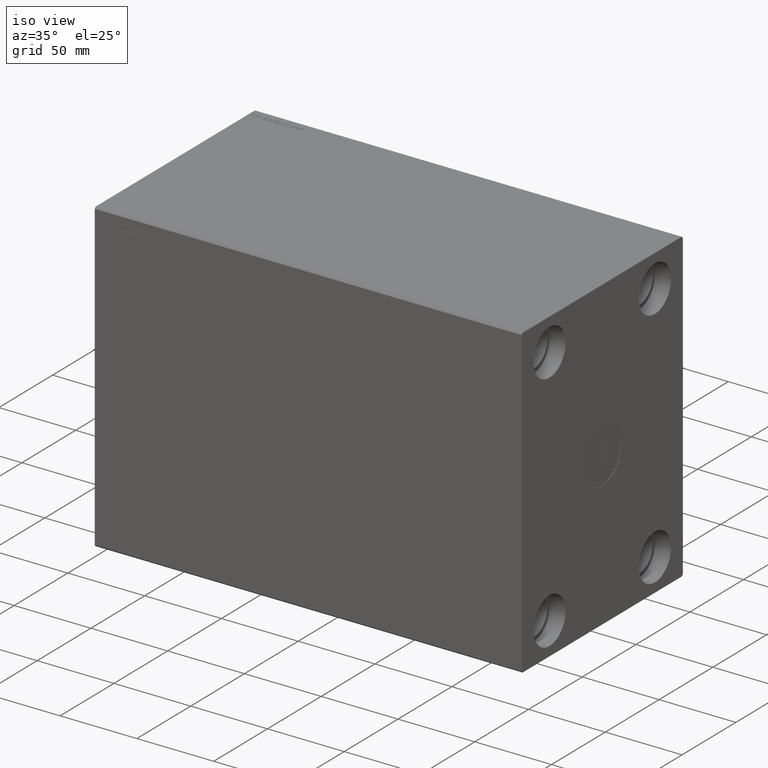
[diagram: clean part render]
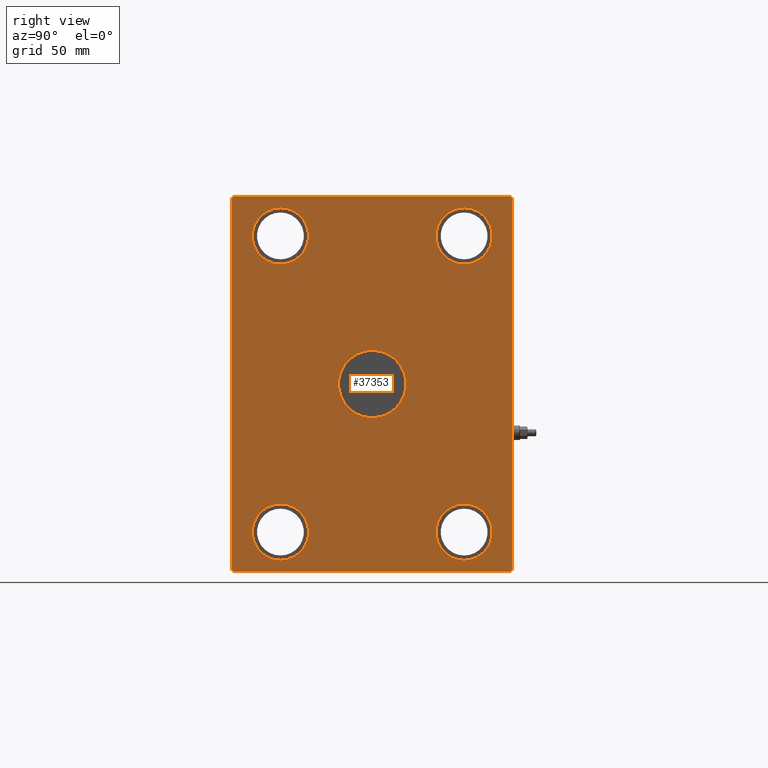
[diagram: tour spotlight — one face highlighted and labeled with its STEP entity id]
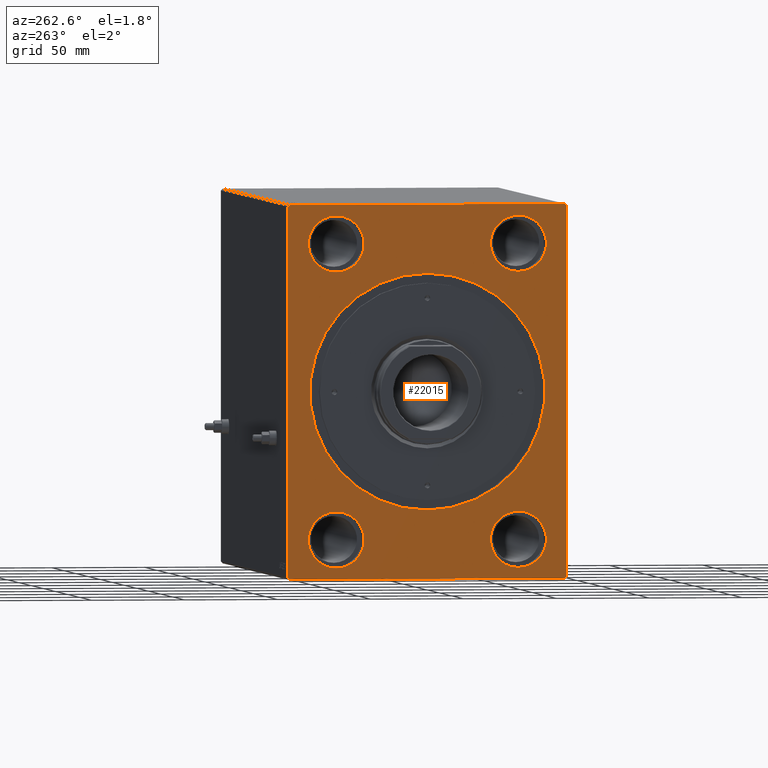
[diagram: tour spotlight — one face highlighted and labeled with its STEP entity id]
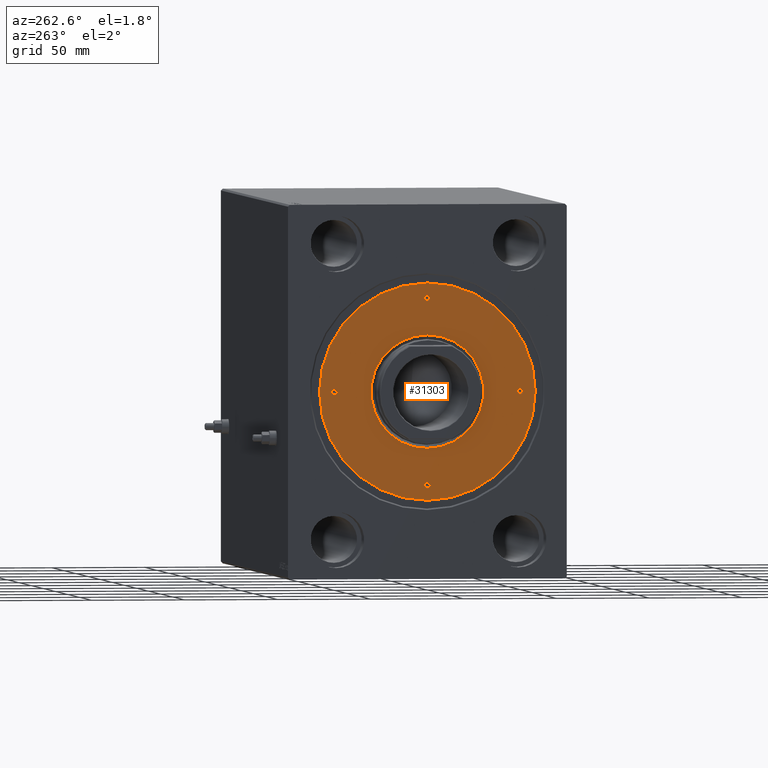
[diagram: tour spotlight — one face highlighted and labeled with its STEP entity id]
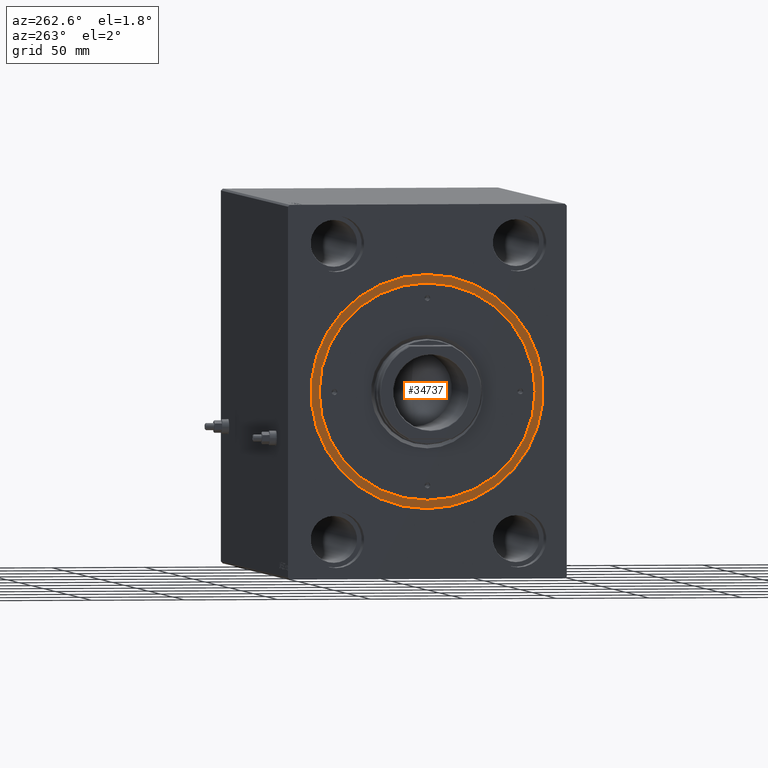
[diagram: tour spotlight — one face highlighted and labeled with its STEP entity id]
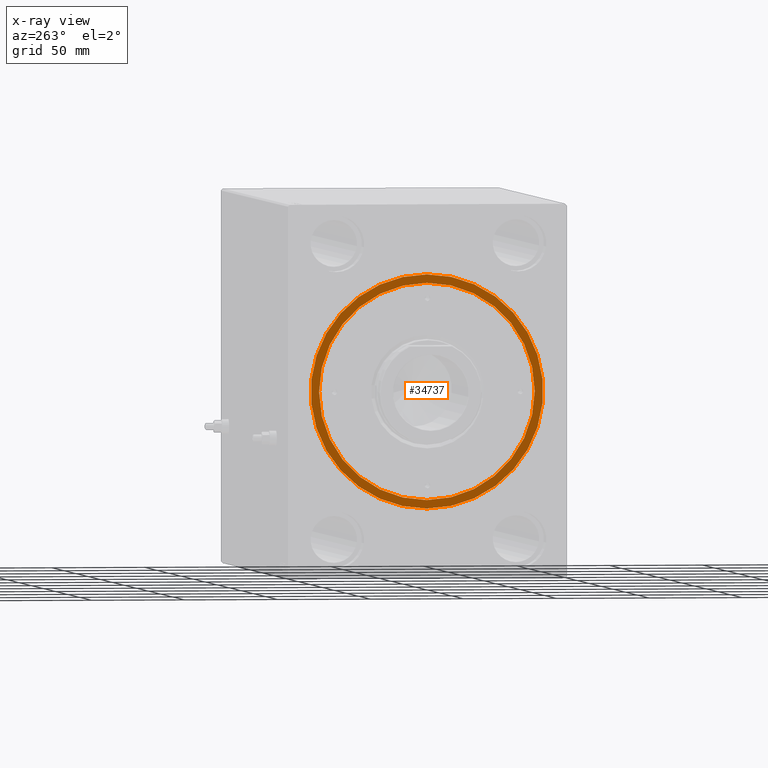
[diagram: x-ray of the same camera — body ghosted, this tour face saturated]
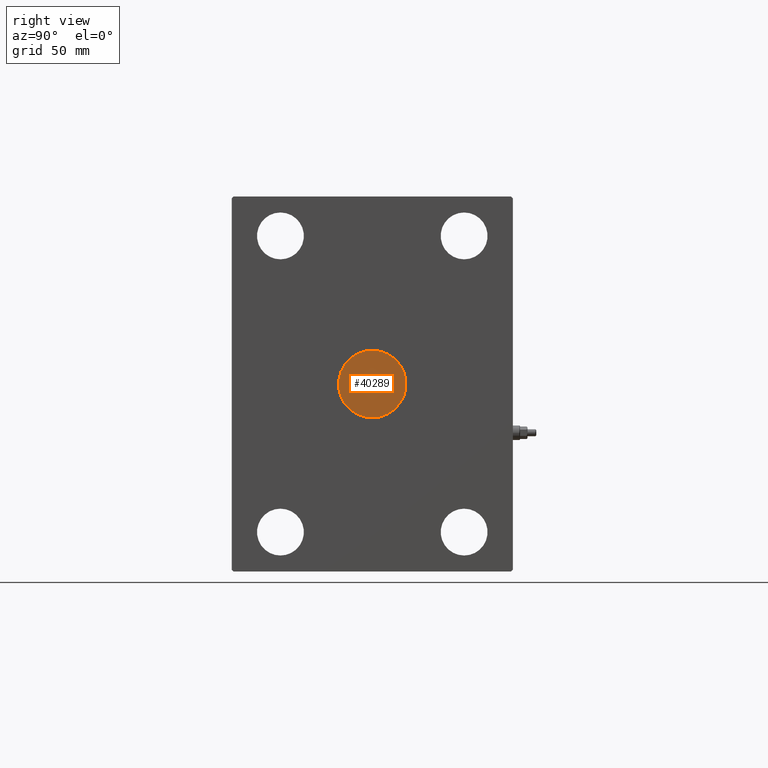
[diagram: tour spotlight — one face highlighted and labeled with its STEP entity id]
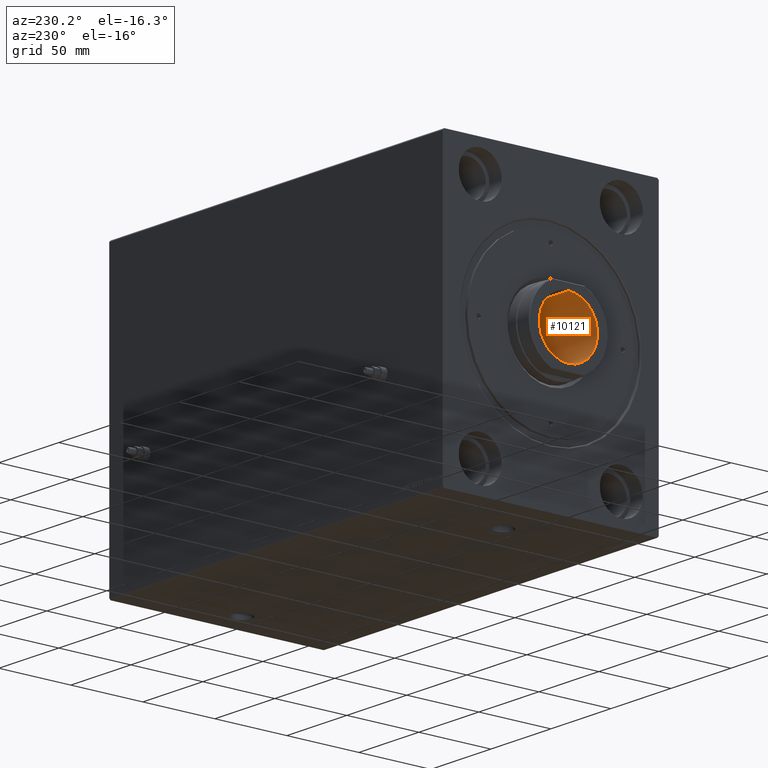
[diagram: tour spotlight — one face highlighted and labeled with its STEP entity id]
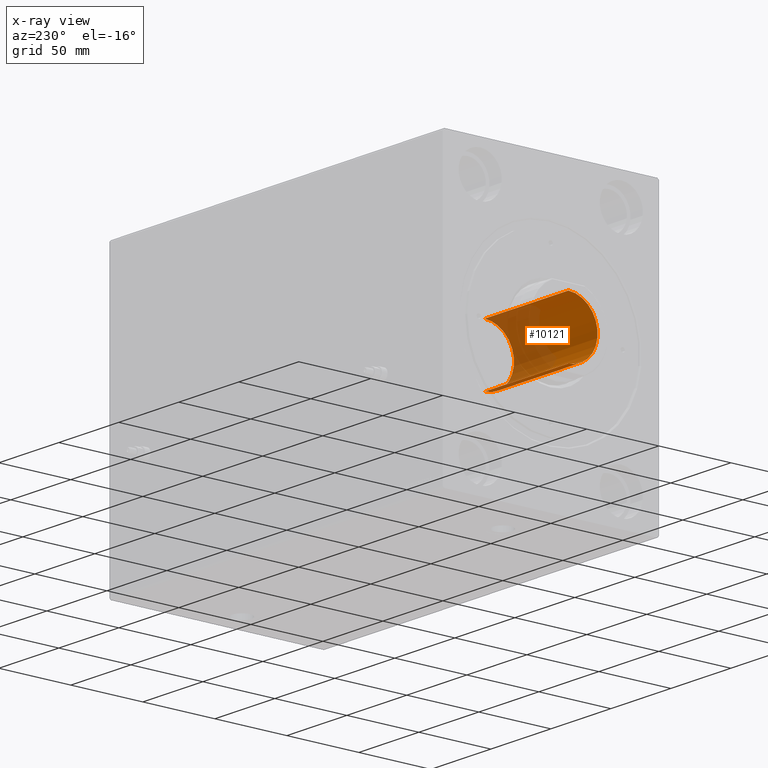
[diagram: x-ray of the same camera — body ghosted, this tour face saturated]
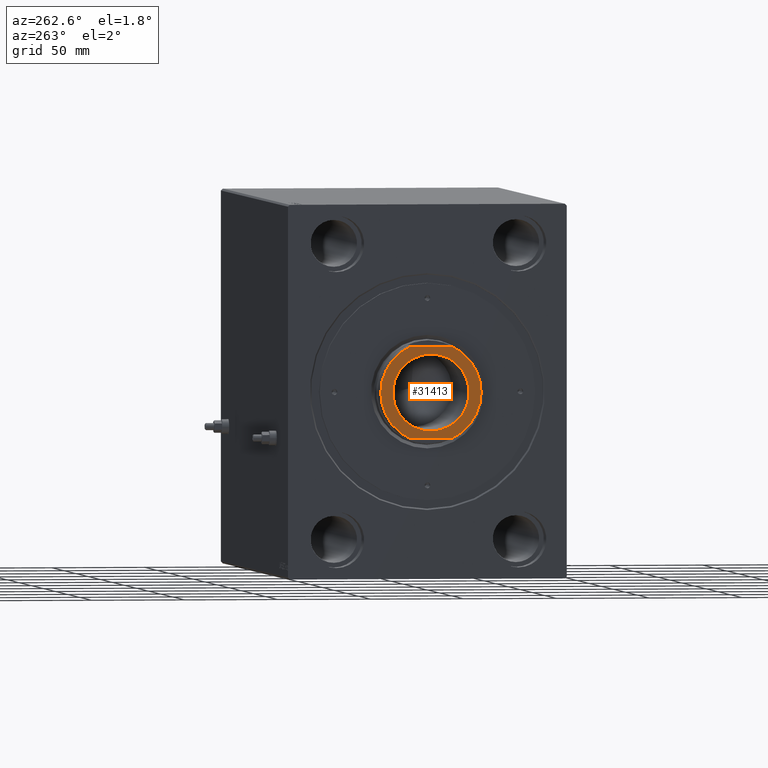
[diagram: tour spotlight — one face highlighted and labeled with its STEP entity id]
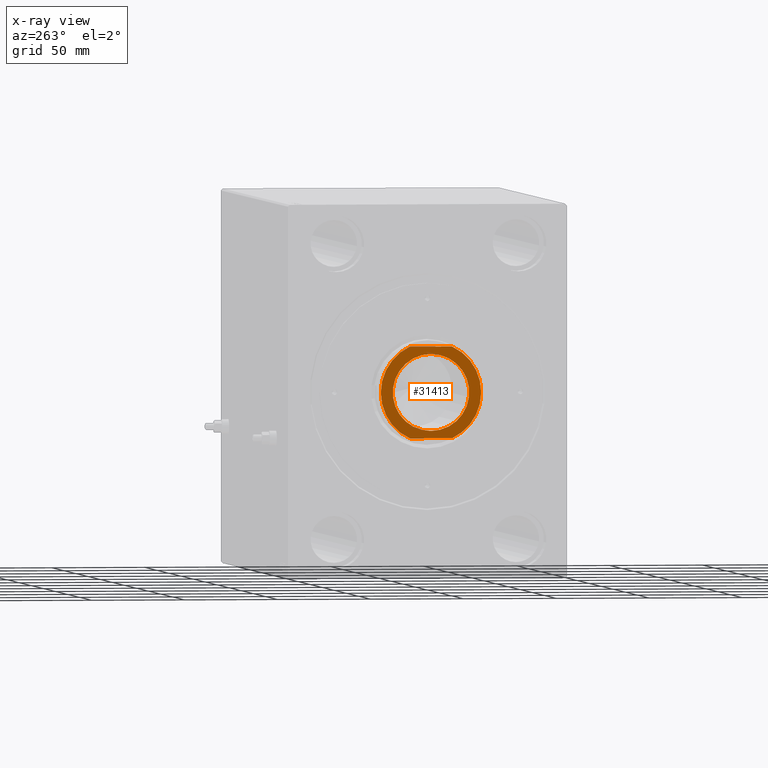
[diagram: x-ray of the same camera — body ghosted, this tour face saturated]
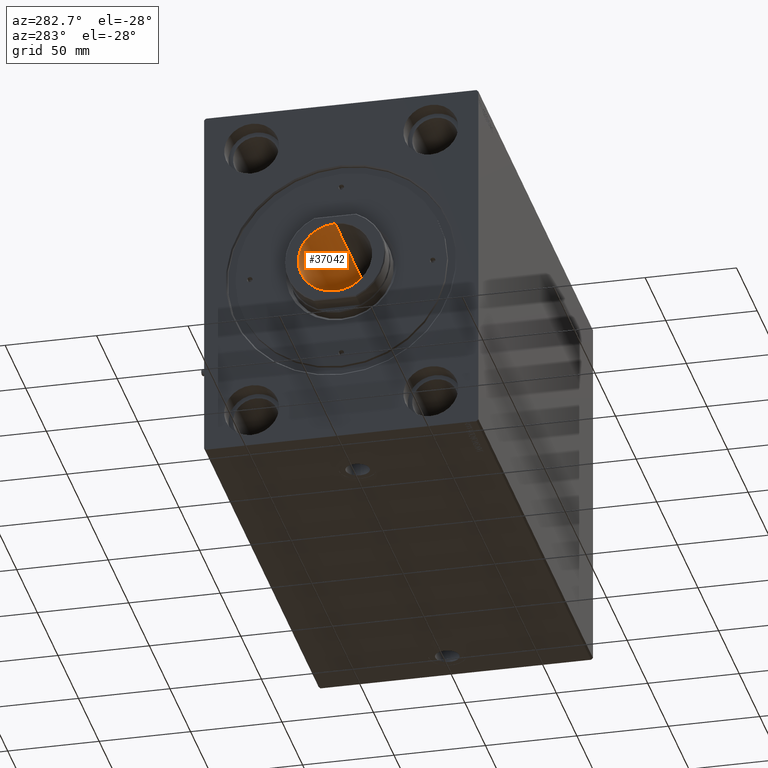
[diagram: tour spotlight — one face highlighted and labeled with its STEP entity id]
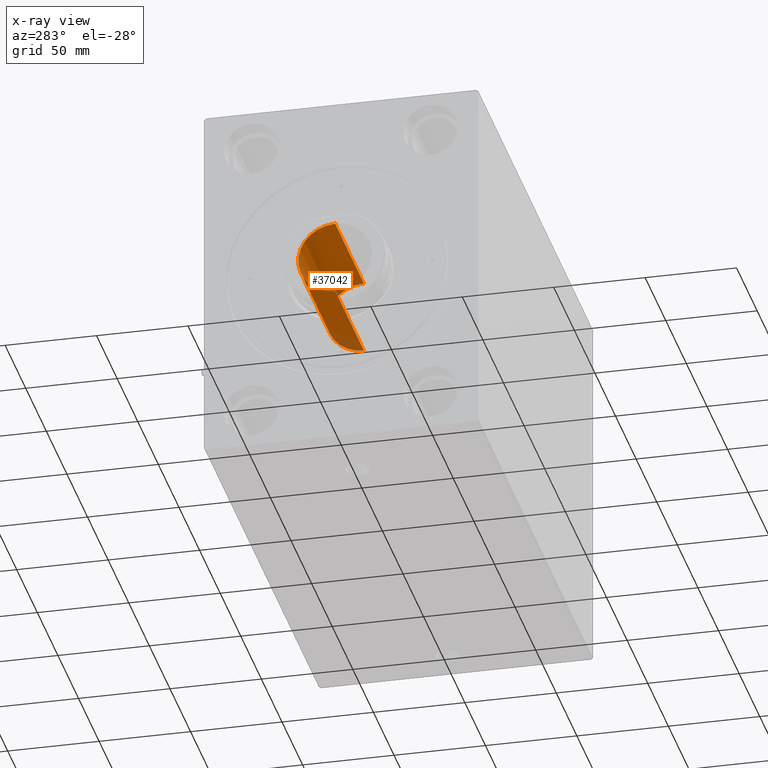
[diagram: x-ray of the same camera — body ghosted, this tour face saturated]
A machine part: a face-by-face anatomy tour. The part has 934 B-rep faces; the first image is the clean iso view, then the 8 largest visible faces are spotlighted one at a time (largest first), each with its STEP entity span.

Face 1 — right view, entity #37353. In plain terms, the highlighted planar face has unit normal (1, 0, 0).
Definition (entity closure, byte-faithful):
#403 = EDGE_LOOP ( 'NONE', ( #5843, #24747 ) ) ;
#408 = CARTESIAN_POINT ( 'NONE',  ( 278.0000000000000000, -48.99999999999999289, 64.00000000000001421 ) ) ;
#447 = VECTOR ( 'NONE', #11481, 1000.000000000000114 ) ;
#604 = CARTESIAN_POINT ( 'NONE',  ( 278.0000000000000000, 74.00000000000000000, 99.99999999999995737 ) ) ;
#823 = DIRECTION ( 'NONE',  ( 0.000000000000000000, 0.000000000000000000, 1.000000000000000000 ) ) ;
#902 = AXIS2_PLACEMENT_3D ( 'NONE', #30430, #40946, #13744 ) ;
#943 = VERTEX_POINT ( 'NONE', #32220 ) ;
#1150 = CARTESIAN_POINT ( 'NONE',  ( 278.0000000000000000, 75.00000000000000000, 98.99999999999995737 ) ) ;
#1239 = DIRECTION ( 'NONE',  ( -1.000000000000000000, -0.000000000000000000, -0.000000000000000000 ) ) ;
#1243 = AXIS2_PLACEMENT_3D ( 'NONE', #1360, #4126, #11645 ) ;
#1360 = CARTESIAN_POINT ( 'NONE',  ( 278.0000000000000000, 0.000000000000000000, 0.000000000000000000 ) ) ;
#1426 = LINE ( 'NONE', #11705, #447 ) ;
#1642 = VERTEX_POINT ( 'NONE', #29530 ) ;
#2133 = VERTEX_POINT ( 'NONE', #17760 ) ;
#2496 = VECTOR ( 'NONE', #24006, 1000.000000000000000 ) ;
#2880 = AXIS2_PLACEMENT_3D ( 'NONE', #10427, #37384, #6111 ) ;
#3009 = DIRECTION ( 'NONE',  ( 1.000000000000000000, -0.000000000000000000, -0.000000000000000000 ) ) ;
#3280 = ORIENTED_EDGE ( 'NONE', *, *, #10200, .T. ) ;
#3476 = EDGE_CURVE ( 'NONE', #4236, #43126, #12339, .T. ) ;
#3661 = ORIENTED_EDGE ( 'NONE', *, *, #8218, .T. ) ;
#3773 = AXIS2_PLACEMENT_3D ( 'NONE', #13906, #37888, #10711 ) ;
#4126 = DIRECTION ( 'NONE',  ( 1.000000000000000000, 0.000000000000000000, 0.000000000000000000 ) ) ;
#4236 = VERTEX_POINT ( 'NONE', #27064 ) ;
#4557 = EDGE_CURVE ( 'NONE', #44519, #1642, #33504, .T. ) ;
#4572 = ORIENTED_EDGE ( 'NONE', *, *, #3476, .F. ) ;
#4948 = ORIENTED_EDGE ( 'NONE', *, *, #39200, .T. ) ;
#5712 = CARTESIAN_POINT ( 'NONE',  ( 278.0000000000000000, -48.99999999999999289, 94.00000000000001421 ) ) ;
#5843 = ORIENTED_EDGE ( 'NONE', *, *, #43065, .F. ) ;
#5964 = CIRCLE ( 'NONE', #3773, 15.00000000000000000 ) ;
#6111 = DIRECTION ( 'NONE',  ( 0.000000000000000000, 0.000000000000000000, -1.000000000000000000 ) ) ;
#6285 = CARTESIAN_POINT ( 'NONE',  ( 278.0000000000000000, 49.00000000000000711, 79.00000000000001421 ) ) ;
#6346 = CARTESIAN_POINT ( 'NONE',  ( 278.0000000000000000, 0.000000000000000000, 0.000000000000000000 ) ) ;
#7776 = CARTESIAN_POINT ( 'NONE',  ( 278.0000000000000000, 49.00000000000000711, -64.00000000000001421 ) ) ;
#8008 = PLANE ( 'NONE',  #1243 ) ;
#8218 = EDGE_CURVE ( 'NONE', #2133, #16685, #34517, .T. ) ;
#8898 = CIRCLE ( 'NONE', #20613, 15.00000000000000000 ) ;
#9106 = CARTESIAN_POINT ( 'NONE',  ( 278.0000000000000000, -75.00000000000000000, 98.99999999999994316 ) ) ;
#9182 = ORIENTED_EDGE ( 'NONE', *, *, #42058, .T. ) ;
#9309 = EDGE_LOOP ( 'NONE', ( #41770, #3280, #4948, #39442, #23205, #3661, #25740, #9182 ) ) ;
#9521 = EDGE_CURVE ( 'NONE', #943, #27555, #35628, .T. ) ;
#9583 = VERTEX_POINT ( 'NONE', #5712 ) ;
#9646 = CARTESIAN_POINT ( 'NONE',  ( 278.0000000000000000, -74.99999999999997158, -99.00000000000005684 ) ) ;
#9693 = VERTEX_POINT ( 'NONE', #10043 ) ;
#9741 = EDGE_CURVE ( 'NONE', #9583, #44418, #5964, .T. ) ;
#10043 = CARTESIAN_POINT ( 'NONE',  ( 278.0000000000000000, 49.00000000000000711, -94.00000000000001421 ) ) ;
#10067 = CIRCLE ( 'NONE', #36302, 15.00000000000000000 ) ;
#10106 = EDGE_CURVE ( 'NONE', #38343, #24712, #32946, .T. ) ;
#10200 = EDGE_CURVE ( 'NONE', #27555, #13315, #29126, .T. ) ;
#10427 = CARTESIAN_POINT ( 'NONE',  ( 278.0000000000000000, 0.000000000000000000, 0.000000000000000000 ) ) ;
#10449 = EDGE_CURVE ( 'NONE', #43126, #4236, #30087, .T. ) ;
#10711 = DIRECTION ( 'NONE',  ( 0.000000000000000000, 0.000000000000000000, 1.000000000000000000 ) ) ;
#11212 = DIRECTION ( 'NONE',  ( 0.000000000000000000, -0.7071067811865474617, 0.7071067811865474617 ) ) ;
#11320 = VERTEX_POINT ( 'NONE', #9106 ) ;
#11481 = DIRECTION ( 'NONE',  ( 0.000000000000000000, 0.7071067811865474617, 0.7071067811865474617 ) ) ;
#11645 = DIRECTION ( 'NONE',  ( 0.000000000000000000, 0.000000000000000000, -1.000000000000000000 ) ) ;
#11705 = CARTESIAN_POINT ( 'NONE',  ( 278.0000000000000000, 74.00000000000001421, -100.0000000000000426 ) ) ;
#11838 = VERTEX_POINT ( 'NONE', #44090 ) ;
#12296 = CARTESIAN_POINT ( 'NONE',  ( 278.0000000000000000, -74.00000000000000000, 99.99999999999994316 ) ) ;
#12339 = CIRCLE ( 'NONE', #37871, 15.00000000000000000 ) ;
#12796 = ORIENTED_EDGE ( 'NONE', *, *, #9741, .T. ) ;
#13141 = CARTESIAN_POINT ( 'NONE',  ( 278.0000000000000000, 74.00000000000000000, 99.99999999999995737 ) ) ;
#13315 = VERTEX_POINT ( 'NONE', #28043 ) ;
#13499 = ORIENTED_EDGE ( 'NONE', *, *, #35698, .T. ) ;
#13718 = EDGE_CURVE ( 'NONE', #20347, #9693, #8898, .T. ) ;
#13744 = DIRECTION ( 'NONE',  ( 0.000000000000000000, 0.000000000000000000, -1.000000000000000000 ) ) ;
#13802 = EDGE_LOOP ( 'NONE', ( #27049, #35548 ) ) ;
#13906 = CARTESIAN_POINT ( 'NONE',  ( 278.0000000000000000, -48.99999999999999289, 79.00000000000001421 ) ) ;
#14154 = EDGE_CURVE ( 'NONE', #1642, #44519, #41004, .T. ) ;
#14364 = CIRCLE ( 'NONE', #23110, 15.00000000000000000 ) ;
#15506 = LINE ( 'NONE', #12296, #39226 ) ;
#16499 = CARTESIAN_POINT ( 'NONE',  ( 278.0000000000000000, 49.00000000000000711, 79.00000000000001421 ) ) ;
#16685 = VERTEX_POINT ( 'NONE', #43410 ) ;
#17742 = LINE ( 'NONE', #31647, #29813 ) ;
#17760 = CARTESIAN_POINT ( 'NONE',  ( 278.0000000000000000, -73.99999999999998579, -100.0000000000000426 ) ) ;
#18071 = FACE_OUTER_BOUND ( 'NONE', #9309, .T. ) ;
#18194 = CIRCLE ( 'NONE', #2880, 18.00000000000000000 ) ;
#18197 = CARTESIAN_POINT ( 'NONE',  ( 278.0000000000000000, 49.00000000000000711, 64.00000000000001421 ) ) ;
#19994 = CARTESIAN_POINT ( 'NONE',  ( 278.0000000000000000, 49.00000000000000711, -79.00000000000001421 ) ) ;
#20071 = CARTESIAN_POINT ( 'NONE',  ( 278.0000000000000000, 2.204364238465235428E-15, 18.00000000000000000 ) ) ;
#20218 = EDGE_CURVE ( 'NONE', #11320, #11838, #41356, .T. ) ;
#20347 = VERTEX_POINT ( 'NONE', #7776 ) ;
#20613 = AXIS2_PLACEMENT_3D ( 'NONE', #22713, #1239, #26135 ) ;
#21388 = CARTESIAN_POINT ( 'NONE',  ( 278.0000000000000000, -48.99999999999999289, 79.00000000000001421 ) ) ;
#22159 = FACE_BOUND ( 'NONE', #39073, .T. ) ;
#22509 = DIRECTION ( 'NONE',  ( -1.000000000000000000, -0.000000000000000000, -0.000000000000000000 ) ) ;
#22713 = CARTESIAN_POINT ( 'NONE',  ( 278.0000000000000000, 49.00000000000000711, -79.00000000000001421 ) ) ;
#23110 = AXIS2_PLACEMENT_3D ( 'NONE', #19994, #22509, #40527 ) ;
#23205 = ORIENTED_EDGE ( 'NONE', *, *, #33067, .T. ) ;
#23353 = DIRECTION ( 'NONE',  ( 0.000000000000000000, 0.7071067811865474617, -0.7071067811865474617 ) ) ;
#23663 = ORIENTED_EDGE ( 'NONE', *, *, #13718, .T. ) ;
#23803 = CARTESIAN_POINT ( 'NONE',  ( 278.0000000000000000, -73.99999999999998579, -100.0000000000000426 ) ) ;
#23889 = ORIENTED_EDGE ( 'NONE', *, *, #10449, .F. ) ;
#24006 = DIRECTION ( 'NONE',  ( 0.000000000000000000, 1.401796748264086446E-16, -1.000000000000000000 ) ) ;
#24084 = DIRECTION ( 'NONE',  ( 1.000000000000000000, -0.000000000000000000, -0.000000000000000000 ) ) ;
#24252 = DIRECTION ( 'NONE',  ( 1.000000000000000000, -0.000000000000000000, -0.000000000000000000 ) ) ;
#24455 = VERTEX_POINT ( 'NONE', #41279 ) ;
#24712 = VERTEX_POINT ( 'NONE', #30944 ) ;
#24747 = ORIENTED_EDGE ( 'NONE', *, *, #10106, .F. ) ;
#25358 = FACE_BOUND ( 'NONE', #26644, .T. ) ;
#25740 = ORIENTED_EDGE ( 'NONE', *, *, #30335, .T. ) ;
#26135 = DIRECTION ( 'NONE',  ( 0.000000000000000000, 0.000000000000000000, 1.000000000000000000 ) ) ;
#26644 = EDGE_LOOP ( 'NONE', ( #38689, #23663 ) ) ;
#27049 = ORIENTED_EDGE ( 'NONE', *, *, #4557, .F. ) ;
#27064 = CARTESIAN_POINT ( 'NONE',  ( 278.0000000000000000, 49.00000000000000711, 94.00000000000001421 ) ) ;
#27555 = VERTEX_POINT ( 'NONE', #13141 ) ;
#28043 = CARTESIAN_POINT ( 'NONE',  ( 278.0000000000000000, -74.00000000000000000, 99.99999999999994316 ) ) ;
#28235 = DIRECTION ( 'NONE',  ( 0.000000000000000000, 0.000000000000000000, -1.000000000000000000 ) ) ;
#28685 = DIRECTION ( 'NONE',  ( 0.000000000000000000, -1.000000000000000000, -9.376883653928687363E-17 ) ) ;
#29126 = LINE ( 'NONE', #604, #30053 ) ;
#29530 = CARTESIAN_POINT ( 'NONE',  ( 278.0000000000000000, -48.99999999999999289, -64.00000000000001421 ) ) ;
#29813 = VECTOR ( 'NONE', #42609, 1000.000000000000000 ) ;
#30053 = VECTOR ( 'NONE', #28685, 1000.000000000000000 ) ;
#30087 = CIRCLE ( 'NONE', #44657, 15.00000000000000000 ) ;
#30335 = EDGE_CURVE ( 'NONE', #16685, #24455, #1426, .T. ) ;
#30430 = CARTESIAN_POINT ( 'NONE',  ( 278.0000000000000000, -48.99999999999999289, -79.00000000000001421 ) ) ;
#30944 = CARTESIAN_POINT ( 'NONE',  ( 278.0000000000000000, 0.000000000000000000, -18.00000000000000000 ) ) ;
#31155 = DIRECTION ( 'NONE',  ( 0.000000000000000000, 0.000000000000000000, -1.000000000000000000 ) ) ;
#31333 = EDGE_CURVE ( 'NONE', #9693, #20347, #14364, .T. ) ;
#31440 = DIRECTION ( 'NONE',  ( 1.000000000000000000, 0.000000000000000000, 0.000000000000000000 ) ) ;
#31551 = CARTESIAN_POINT ( 'NONE',  ( 278.0000000000000000, -48.99999999999999289, -79.00000000000001421 ) ) ;
#31647 = CARTESIAN_POINT ( 'NONE',  ( 278.0000000000000000, 75.00000000000001421, -99.00000000000004263 ) ) ;
#32072 = AXIS2_PLACEMENT_3D ( 'NONE', #31551, #24252, #34961 ) ;
#32145 = CARTESIAN_POINT ( 'NONE',  ( 278.0000000000000000, -48.99999999999999289, -94.00000000000001421 ) ) ;
#32220 = CARTESIAN_POINT ( 'NONE',  ( 278.0000000000000000, 75.00000000000000000, 98.99999999999995737 ) ) ;
#32946 = CIRCLE ( 'NONE', #44625, 18.00000000000000000 ) ;
#33067 = EDGE_CURVE ( 'NONE', #11838, #2133, #40695, .T. ) ;
#33504 = CIRCLE ( 'NONE', #32072, 15.00000000000000000 ) ;
#34517 = LINE ( 'NONE', #23803, #39492 ) ;
#34961 = DIRECTION ( 'NONE',  ( 0.000000000000000000, 0.000000000000000000, -1.000000000000000000 ) ) ;
#35548 = ORIENTED_EDGE ( 'NONE', *, *, #14154, .F. ) ;
#35628 = LINE ( 'NONE', #1150, #39527 ) ;
#35698 = EDGE_CURVE ( 'NONE', #44418, #9583, #10067, .T. ) ;
#36246 = VECTOR ( 'NONE', #23353, 1000.000000000000114 ) ;
#36302 = AXIS2_PLACEMENT_3D ( 'NONE', #21388, #38262, #823 ) ;
#37248 = CARTESIAN_POINT ( 'NONE',  ( 278.0000000000000000, -75.00000000000000000, 98.99999999999994316 ) ) ;
#37353 = ADVANCED_FACE ( 'NONE', ( #42932, #42491, #25358, #18071, #39052, #22159 ), #8008, .T. ) ;
#37384 = DIRECTION ( 'NONE',  ( 1.000000000000000000, 0.000000000000000000, 0.000000000000000000 ) ) ;
#37528 = EDGE_LOOP ( 'NONE', ( #13499, #12796 ) ) ;
#37720 = DIRECTION ( 'NONE',  ( 0.000000000000000000, 1.000000000000000000, 0.000000000000000000 ) ) ;
#37871 = AXIS2_PLACEMENT_3D ( 'NONE', #16499, #3009, #44801 ) ;
#37888 = DIRECTION ( 'NONE',  ( -1.000000000000000000, -0.000000000000000000, -0.000000000000000000 ) ) ;
#38262 = DIRECTION ( 'NONE',  ( -1.000000000000000000, -0.000000000000000000, -0.000000000000000000 ) ) ;
#38343 = VERTEX_POINT ( 'NONE', #20071 ) ;
#38689 = ORIENTED_EDGE ( 'NONE', *, *, #31333, .T. ) ;
#39052 = FACE_BOUND ( 'NONE', #13802, .T. ) ;
#39073 = EDGE_LOOP ( 'NONE', ( #23889, #4572 ) ) ;
#39200 = EDGE_CURVE ( 'NONE', #13315, #11320, #15506, .T. ) ;
#39226 = VECTOR ( 'NONE', #43355, 1000.000000000000114 ) ;
#39442 = ORIENTED_EDGE ( 'NONE', *, *, #20218, .T. ) ;
#39492 = VECTOR ( 'NONE', #37720, 1000.000000000000000 ) ;
#39527 = VECTOR ( 'NONE', #11212, 1000.000000000000114 ) ;
#40527 = DIRECTION ( 'NONE',  ( 0.000000000000000000, 0.000000000000000000, 1.000000000000000000 ) ) ;
#40695 = LINE ( 'NONE', #9646, #36246 ) ;
#40946 = DIRECTION ( 'NONE',  ( 1.000000000000000000, -0.000000000000000000, -0.000000000000000000 ) ) ;
#41004 = CIRCLE ( 'NONE', #902, 15.00000000000000000 ) ;
#41279 = CARTESIAN_POINT ( 'NONE',  ( 278.0000000000000000, 75.00000000000001421, -99.00000000000004263 ) ) ;
#41356 = LINE ( 'NONE', #37248, #2496 ) ;
#41770 = ORIENTED_EDGE ( 'NONE', *, *, #9521, .T. ) ;
#42058 = EDGE_CURVE ( 'NONE', #24455, #943, #17742, .T. ) ;
#42491 = FACE_BOUND ( 'NONE', #37528, .T. ) ;
#42609 = DIRECTION ( 'NONE',  ( 0.000000000000000000, -7.008983741320432232E-17, 1.000000000000000000 ) ) ;
#42932 = FACE_BOUND ( 'NONE', #403, .T. ) ;
#43065 = EDGE_CURVE ( 'NONE', #24712, #38343, #18194, .T. ) ;
#43126 = VERTEX_POINT ( 'NONE', #18197 ) ;
#43355 = DIRECTION ( 'NONE',  ( 0.000000000000000000, -0.7071067811865474617, -0.7071067811865474617 ) ) ;
#43410 = CARTESIAN_POINT ( 'NONE',  ( 278.0000000000000000, 74.00000000000001421, -100.0000000000000426 ) ) ;
#44090 = CARTESIAN_POINT ( 'NONE',  ( 278.0000000000000000, -74.99999999999997158, -99.00000000000005684 ) ) ;
#44418 = VERTEX_POINT ( 'NONE', #408 ) ;
#44519 = VERTEX_POINT ( 'NONE', #32145 ) ;
#44625 = AXIS2_PLACEMENT_3D ( 'NONE', #6346, #31440, #28235 ) ;
#44657 = AXIS2_PLACEMENT_3D ( 'NONE', #6285, #24084, #31155 ) ;
#44801 = DIRECTION ( 'NONE',  ( 0.000000000000000000, 0.000000000000000000, -1.000000000000000000 ) ) ;

Face 2 — auxiliary view, entity #22015. In plain terms, the highlighted planar face has unit normal (1, 0, 0).
Definition (entity closure, byte-faithful):
#280 = CARTESIAN_POINT ( 'NONE',  ( 0.000000000000000000, 49.00000000000000711, -94.00000000000001421 ) ) ;
#492 = CARTESIAN_POINT ( 'NONE',  ( 0.000000000000000000, -73.99999999999998579, -100.0000000000000426 ) ) ;
#697 = VERTEX_POINT ( 'NONE', #9023 ) ;
#764 = EDGE_CURVE ( 'NONE', #35185, #40262, #9365, .T. ) ;
#1600 = DIRECTION ( 'NONE',  ( 1.000000000000000000, -0.000000000000000000, -0.000000000000000000 ) ) ;
#1611 = EDGE_LOOP ( 'NONE', ( #13998, #34073 ) ) ;
#1897 = VECTOR ( 'NONE', #9342, 1000.000000000000114 ) ;
#1989 = FACE_BOUND ( 'NONE', #34939, .T. ) ;
#2114 = VECTOR ( 'NONE', #44228, 1000.000000000000000 ) ;
#2220 = CARTESIAN_POINT ( 'NONE',  ( 0.000000000000000000, 0.000000000000000000, 0.000000000000000000 ) ) ;
#2661 = AXIS2_PLACEMENT_3D ( 'NONE', #13113, #44398, #20432 ) ;
#2810 = ORIENTED_EDGE ( 'NONE', *, *, #43416, .F. ) ;
#2976 = EDGE_CURVE ( 'NONE', #3261, #4225, #9530, .T. ) ;
#2987 = DIRECTION ( 'NONE',  ( -1.000000000000000000, 0.000000000000000000, 0.000000000000000000 ) ) ;
#3207 = CARTESIAN_POINT ( 'NONE',  ( 0.000000000000000000, -48.99999999999999289, 79.00000000000001421 ) ) ;
#3220 = CARTESIAN_POINT ( 'NONE',  ( 0.000000000000000000, -48.99999999999999289, 94.00000000000001421 ) ) ;
#3261 = VERTEX_POINT ( 'NONE', #44396 ) ;
#3316 = CARTESIAN_POINT ( 'NONE',  ( 0.000000000000000000, -48.99999999999999289, -64.00000000000001421 ) ) ;
#3442 = CARTESIAN_POINT ( 'NONE',  ( 0.000000000000000000, -74.00000000000000000, 99.99999999999994316 ) ) ;
#4190 = DIRECTION ( 'NONE',  ( 1.000000000000000000, -0.000000000000000000, -0.000000000000000000 ) ) ;
#4225 = VERTEX_POINT ( 'NONE', #23415 ) ;
#4542 = ORIENTED_EDGE ( 'NONE', *, *, #6593, .F. ) ;
#4961 = VECTOR ( 'NONE', #27868, 1000.000000000000114 ) ;
#5511 = VERTEX_POINT ( 'NONE', #9381 ) ;
#5525 = ORIENTED_EDGE ( 'NONE', *, *, #42421, .T. ) ;
#5652 = FACE_OUTER_BOUND ( 'NONE', #29395, .T. ) ;
#5853 = CARTESIAN_POINT ( 'NONE',  ( 0.000000000000000000, 49.00000000000000711, 94.00000000000001421 ) ) ;
#6000 = AXIS2_PLACEMENT_3D ( 'NONE', #40775, #30723, #9500 ) ;
#6036 = VERTEX_POINT ( 'NONE', #26988 ) ;
#6288 = CIRCLE ( 'NONE', #31793, 15.00000000000000000 ) ;
#6342 = DIRECTION ( 'NONE',  ( 1.000000000000000000, 0.000000000000000000, 0.000000000000000000 ) ) ;
#6424 = CARTESIAN_POINT ( 'NONE',  ( 0.000000000000000000, -74.99999999999997158, -99.00000000000005684 ) ) ;
#6593 = EDGE_CURVE ( 'NONE', #27524, #27823, #35766, .T. ) ;
#6630 = AXIS2_PLACEMENT_3D ( 'NONE', #32368, #18678, #11145 ) ;
#6712 = ORIENTED_EDGE ( 'NONE', *, *, #764, .F. ) ;
#7076 = ORIENTED_EDGE ( 'NONE', *, *, #38954, .F. ) ;
#7310 = DIRECTION ( 'NONE',  ( 0.000000000000000000, -1.000000000000000000, -9.376883653928687363E-17 ) ) ;
#7375 = DIRECTION ( 'NONE',  ( 1.000000000000000000, -0.000000000000000000, -0.000000000000000000 ) ) ;
#7832 = EDGE_CURVE ( 'NONE', #31377, #22042, #32767, .T. ) ;
#8431 = CARTESIAN_POINT ( 'NONE',  ( 0.000000000000000000, -74.99999999999997158, -99.00000000000005684 ) ) ;
#8623 = ORIENTED_EDGE ( 'NONE', *, *, #35902, .F. ) ;
#9023 = CARTESIAN_POINT ( 'NONE',  ( 0.000000000000000000, -48.99999999999999289, -94.00000000000001421 ) ) ;
#9342 = DIRECTION ( 'NONE',  ( 0.000000000000000000, 0.7071067811865474617, -0.7071067811865474617 ) ) ;
#9365 = CIRCLE ( 'NONE', #24674, 15.00000000000000000 ) ;
#9381 = CARTESIAN_POINT ( 'NONE',  ( 0.000000000000000000, 74.00000000000000000, 99.99999999999995737 ) ) ;
#9480 = EDGE_CURVE ( 'NONE', #39733, #24074, #13264, .T. ) ;
#9500 = DIRECTION ( 'NONE',  ( 0.000000000000000000, 0.000000000000000000, -1.000000000000000000 ) ) ;
#9516 = ORIENTED_EDGE ( 'NONE', *, *, #7832, .F. ) ;
#9530 = LINE ( 'NONE', #16382, #2114 ) ;
#10057 = EDGE_LOOP ( 'NONE', ( #6712, #23609 ) ) ;
#10120 = CARTESIAN_POINT ( 'NONE',  ( 0.000000000000000000, -48.99999999999999289, -79.00000000000001421 ) ) ;
#10383 = ORIENTED_EDGE ( 'NONE', *, *, #2976, .F. ) ;
#10445 = EDGE_CURVE ( 'NONE', #697, #39670, #13302, .T. ) ;
#10938 = AXIS2_PLACEMENT_3D ( 'NONE', #27105, #40566, #26420 ) ;
#11063 = EDGE_CURVE ( 'NONE', #5511, #6036, #32558, .T. ) ;
#11145 = DIRECTION ( 'NONE',  ( 0.000000000000000000, 0.000000000000000000, 1.000000000000000000 ) ) ;
#11410 = LINE ( 'NONE', #3442, #24820 ) ;
#11657 = DIRECTION ( 'NONE',  ( 0.000000000000000000, 0.000000000000000000, -1.000000000000000000 ) ) ;
#12062 = ORIENTED_EDGE ( 'NONE', *, *, #14857, .T. ) ;
#12404 = ORIENTED_EDGE ( 'NONE', *, *, #26394, .F. ) ;
#12475 = EDGE_LOOP ( 'NONE', ( #41257, #12062 ) ) ;
#12603 = AXIS2_PLACEMENT_3D ( 'NONE', #10120, #7375, #27700 ) ;
#13113 = CARTESIAN_POINT ( 'NONE',  ( 0.000000000000000000, 0.000000000000000000, 0.000000000000000000 ) ) ;
#13264 = CIRCLE ( 'NONE', #17650, 15.00000000000000000 ) ;
#13302 = CIRCLE ( 'NONE', #19142, 15.00000000000000000 ) ;
#13913 = VECTOR ( 'NONE', #18191, 1000.000000000000000 ) ;
#13998 = ORIENTED_EDGE ( 'NONE', *, *, #15848, .T. ) ;
#14232 = CARTESIAN_POINT ( 'NONE',  ( 0.000000000000000000, 0.000000000000000000, 63.20000000000008811 ) ) ;
#14636 = DIRECTION ( 'NONE',  ( -1.000000000000000000, 0.000000000000000000, 0.000000000000000000 ) ) ;
#14857 = EDGE_CURVE ( 'NONE', #41021, #30296, #17680, .T. ) ;
#15848 = EDGE_CURVE ( 'NONE', #39670, #697, #41042, .T. ) ;
#16133 = LINE ( 'NONE', #36887, #29846 ) ;
#16382 = CARTESIAN_POINT ( 'NONE',  ( 0.000000000000000000, 75.00000000000001421, -99.00000000000004263 ) ) ;
#17020 = CARTESIAN_POINT ( 'NONE',  ( 0.000000000000000000, -48.99999999999999289, -79.00000000000001421 ) ) ;
#17146 = AXIS2_PLACEMENT_3D ( 'NONE', #2220, #6342, #27349 ) ;
#17153 = DIRECTION ( 'NONE',  ( 0.000000000000000000, 0.000000000000000000, 1.000000000000000000 ) ) ;
#17650 = AXIS2_PLACEMENT_3D ( 'NONE', #25589, #1600, #11657 ) ;
#17680 = CIRCLE ( 'NONE', #6000, 63.20000000000008811 ) ;
#17719 = ORIENTED_EDGE ( 'NONE', *, *, #9480, .T. ) ;
#17905 = DIRECTION ( 'NONE',  ( 0.000000000000000000, 0.7071067811865474617, 0.7071067811865474617 ) ) ;
#18137 = DIRECTION ( 'NONE',  ( 0.000000000000000000, 0.000000000000000000, -1.000000000000000000 ) ) ;
#18191 = DIRECTION ( 'NONE',  ( 0.000000000000000000, 1.000000000000000000, 0.000000000000000000 ) ) ;
#18678 = DIRECTION ( 'NONE',  ( -1.000000000000000000, 0.000000000000000000, 0.000000000000000000 ) ) ;
#19142 = AXIS2_PLACEMENT_3D ( 'NONE', #17020, #37997, #38451 ) ;
#19591 = FACE_BOUND ( 'NONE', #43680, .T. ) ;
#20432 = DIRECTION ( 'NONE',  ( 0.000000000000000000, 0.000000000000000000, -1.000000000000000000 ) ) ;
#20657 = LINE ( 'NONE', #31593, #23924 ) ;
#21122 = AXIS2_PLACEMENT_3D ( 'NONE', #28172, #4190, #18137 ) ;
#21330 = VECTOR ( 'NONE', #7310, 1000.000000000000000 ) ;
#21730 = CARTESIAN_POINT ( 'NONE',  ( 0.000000000000000000, -48.99999999999999289, 79.00000000000001421 ) ) ;
#21955 = ORIENTED_EDGE ( 'NONE', *, *, #45093, .F. ) ;
#22015 = ADVANCED_FACE ( 'NONE', ( #33276, #1989, #42889, #5652, #43333, #19591 ), #33507, .F. ) ;
#22042 = VERTEX_POINT ( 'NONE', #23250 ) ;
#22547 = CIRCLE ( 'NONE', #21122, 15.00000000000000000 ) ;
#22971 = CARTESIAN_POINT ( 'NONE',  ( 0.000000000000000000, 49.00000000000000711, 64.00000000000001421 ) ) ;
#23250 = CARTESIAN_POINT ( 'NONE',  ( 0.000000000000000000, 74.00000000000001421, -100.0000000000000426 ) ) ;
#23415 = CARTESIAN_POINT ( 'NONE',  ( 0.000000000000000000, 75.00000000000000000, 98.99999999999995737 ) ) ;
#23609 = ORIENTED_EDGE ( 'NONE', *, *, #26330, .F. ) ;
#23924 = VECTOR ( 'NONE', #17905, 1000.000000000000114 ) ;
#24074 = VERTEX_POINT ( 'NONE', #22971 ) ;
#24427 = CARTESIAN_POINT ( 'NONE',  ( 0.000000000000000000, 74.00000000000000000, 99.99999999999995737 ) ) ;
#24674 = AXIS2_PLACEMENT_3D ( 'NONE', #21730, #14636, #28343 ) ;
#24820 = VECTOR ( 'NONE', #28105, 1000.000000000000114 ) ;
#25296 = CARTESIAN_POINT ( 'NONE',  ( 0.000000000000000000, 7.739767770611283136E-15, -63.20000000000008811 ) ) ;
#25589 = CARTESIAN_POINT ( 'NONE',  ( 0.000000000000000000, 49.00000000000000711, 79.00000000000001421 ) ) ;
#26272 = VERTEX_POINT ( 'NONE', #6424 ) ;
#26330 = EDGE_CURVE ( 'NONE', #40262, #35185, #6288, .T. ) ;
#26394 = EDGE_CURVE ( 'NONE', #26272, #31377, #36952, .T. ) ;
#26420 = DIRECTION ( 'NONE',  ( 0.000000000000000000, 0.000000000000000000, 1.000000000000000000 ) ) ;
#26988 = CARTESIAN_POINT ( 'NONE',  ( 0.000000000000000000, -74.00000000000000000, 99.99999999999994316 ) ) ;
#27105 = CARTESIAN_POINT ( 'NONE',  ( 0.000000000000000000, 49.00000000000000711, -79.00000000000001421 ) ) ;
#27349 = DIRECTION ( 'NONE',  ( 0.000000000000000000, 0.000000000000000000, -1.000000000000000000 ) ) ;
#27524 = VERTEX_POINT ( 'NONE', #37789 ) ;
#27700 = DIRECTION ( 'NONE',  ( 0.000000000000000000, 0.000000000000000000, -1.000000000000000000 ) ) ;
#27823 = VERTEX_POINT ( 'NONE', #280 ) ;
#27868 = DIRECTION ( 'NONE',  ( 0.000000000000000000, -0.7071067811865474617, 0.7071067811865474617 ) ) ;
#28105 = DIRECTION ( 'NONE',  ( 0.000000000000000000, -0.7071067811865474617, -0.7071067811865474617 ) ) ;
#28172 = CARTESIAN_POINT ( 'NONE',  ( 0.000000000000000000, 49.00000000000000711, 79.00000000000001421 ) ) ;
#28185 = CIRCLE ( 'NONE', #2661, 63.20000000000008811 ) ;
#28343 = DIRECTION ( 'NONE',  ( 0.000000000000000000, 0.000000000000000000, 1.000000000000000000 ) ) ;
#29118 = CARTESIAN_POINT ( 'NONE',  ( 0.000000000000000000, -73.99999999999998579, -100.0000000000000426 ) ) ;
#29395 = EDGE_LOOP ( 'NONE', ( #7076, #10383, #8623, #9516, #12404, #2810, #21955, #37357 ) ) ;
#29846 = VECTOR ( 'NONE', #42470, 1000.000000000000000 ) ;
#30098 = EDGE_CURVE ( 'NONE', #30296, #41021, #28185, .T. ) ;
#30296 = VERTEX_POINT ( 'NONE', #14232 ) ;
#30723 = DIRECTION ( 'NONE',  ( 1.000000000000000000, 0.000000000000000000, 0.000000000000000000 ) ) ;
#31042 = CARTESIAN_POINT ( 'NONE',  ( 0.000000000000000000, -75.00000000000000000, 98.99999999999994316 ) ) ;
#31377 = VERTEX_POINT ( 'NONE', #492 ) ;
#31593 = CARTESIAN_POINT ( 'NONE',  ( 0.000000000000000000, 74.00000000000001421, -100.0000000000000426 ) ) ;
#31793 = AXIS2_PLACEMENT_3D ( 'NONE', #3207, #2987, #17153 ) ;
#32368 = CARTESIAN_POINT ( 'NONE',  ( 0.000000000000000000, 49.00000000000000711, -79.00000000000001421 ) ) ;
#32558 = LINE ( 'NONE', #24427, #21330 ) ;
#32767 = LINE ( 'NONE', #29118, #13913 ) ;
#33276 = FACE_BOUND ( 'NONE', #10057, .T. ) ;
#33507 = PLANE ( 'NONE',  #17146 ) ;
#34073 = ORIENTED_EDGE ( 'NONE', *, *, #10445, .T. ) ;
#34360 = VERTEX_POINT ( 'NONE', #31042 ) ;
#34939 = EDGE_LOOP ( 'NONE', ( #4542, #41788 ) ) ;
#35185 = VERTEX_POINT ( 'NONE', #3220 ) ;
#35766 = CIRCLE ( 'NONE', #6630, 15.00000000000000000 ) ;
#35902 = EDGE_CURVE ( 'NONE', #22042, #3261, #20657, .T. ) ;
#36887 = CARTESIAN_POINT ( 'NONE',  ( 0.000000000000000000, -75.00000000000000000, 98.99999999999994316 ) ) ;
#36952 = LINE ( 'NONE', #8431, #1897 ) ;
#37357 = ORIENTED_EDGE ( 'NONE', *, *, #11063, .F. ) ;
#37684 = LINE ( 'NONE', #37905, #4961 ) ;
#37789 = CARTESIAN_POINT ( 'NONE',  ( 0.000000000000000000, 49.00000000000000711, -64.00000000000001421 ) ) ;
#37905 = CARTESIAN_POINT ( 'NONE',  ( 0.000000000000000000, 75.00000000000000000, 98.99999999999995737 ) ) ;
#37997 = DIRECTION ( 'NONE',  ( 1.000000000000000000, -0.000000000000000000, -0.000000000000000000 ) ) ;
#38451 = DIRECTION ( 'NONE',  ( 0.000000000000000000, 0.000000000000000000, -1.000000000000000000 ) ) ;
#38954 = EDGE_CURVE ( 'NONE', #4225, #5511, #37684, .T. ) ;
#39670 = VERTEX_POINT ( 'NONE', #3316 ) ;
#39733 = VERTEX_POINT ( 'NONE', #5853 ) ;
#39853 = CARTESIAN_POINT ( 'NONE',  ( 0.000000000000000000, -48.99999999999999289, 64.00000000000001421 ) ) ;
#40069 = CIRCLE ( 'NONE', #10938, 15.00000000000000000 ) ;
#40262 = VERTEX_POINT ( 'NONE', #39853 ) ;
#40566 = DIRECTION ( 'NONE',  ( -1.000000000000000000, 0.000000000000000000, 0.000000000000000000 ) ) ;
#40775 = CARTESIAN_POINT ( 'NONE',  ( 0.000000000000000000, 0.000000000000000000, 0.000000000000000000 ) ) ;
#41021 = VERTEX_POINT ( 'NONE', #25296 ) ;
#41042 = CIRCLE ( 'NONE', #12603, 15.00000000000000000 ) ;
#41257 = ORIENTED_EDGE ( 'NONE', *, *, #30098, .T. ) ;
#41788 = ORIENTED_EDGE ( 'NONE', *, *, #44638, .F. ) ;
#42421 = EDGE_CURVE ( 'NONE', #24074, #39733, #22547, .T. ) ;
#42470 = DIRECTION ( 'NONE',  ( 0.000000000000000000, 1.401796748264086446E-16, -1.000000000000000000 ) ) ;
#42889 = FACE_BOUND ( 'NONE', #12475, .T. ) ;
#43333 = FACE_BOUND ( 'NONE', #1611, .T. ) ;
#43416 = EDGE_CURVE ( 'NONE', #34360, #26272, #16133, .T. ) ;
#43680 = EDGE_LOOP ( 'NONE', ( #17719, #5525 ) ) ;
#44228 = DIRECTION ( 'NONE',  ( 0.000000000000000000, -7.008983741320432232E-17, 1.000000000000000000 ) ) ;
#44396 = CARTESIAN_POINT ( 'NONE',  ( 0.000000000000000000, 75.00000000000001421, -99.00000000000004263 ) ) ;
#44398 = DIRECTION ( 'NONE',  ( 1.000000000000000000, 0.000000000000000000, 0.000000000000000000 ) ) ;
#44638 = EDGE_CURVE ( 'NONE', #27823, #27524, #40069, .T. ) ;
#45093 = EDGE_CURVE ( 'NONE', #6036, #34360, #11410, .T. ) ;

Face 3 — auxiliary view, entity #31303. In plain terms, the highlighted planar face has unit normal (-1, 0, 0).
Definition (entity closure, byte-faithful):
#53 = EDGE_LOOP ( 'NONE', ( #18381, #33412 ) ) ;
#321 = DIRECTION ( 'NONE',  ( 1.000000000000000000, 0.000000000000000000, 0.000000000000000000 ) ) ;
#328 = DIRECTION ( 'NONE',  ( 1.000000000000000000, 0.000000000000000000, 0.000000000000000000 ) ) ;
#1862 = EDGE_LOOP ( 'NONE', ( #26866, #37976 ) ) ;
#2330 = CARTESIAN_POINT ( 'NONE',  ( -1.499999999999996891, -50.00000000000000000, 15.00000000000000000 ) ) ;
#2394 = FACE_BOUND ( 'NONE', #53, .T. ) ;
#2740 = CARTESIAN_POINT ( 'NONE',  ( 0.000000000000000000, 0.000000000000000000, 15.00000000000000000 ) ) ;
#3050 = ORIENTED_EDGE ( 'NONE', *, *, #44193, .F. ) ;
#3408 = CIRCLE ( 'NONE', #25996, 30.29999999999996874 ) ;
#3643 = AXIS2_PLACEMENT_3D ( 'NONE', #25539, #39460, #15261 ) ;
#3811 = CARTESIAN_POINT ( 'NONE',  ( 51.50000000000000000, 0.000000000000000000, 15.00000000000000000 ) ) ;
#4706 = AXIS2_PLACEMENT_3D ( 'NONE', #28388, #38887, #7618 ) ;
#4958 = EDGE_CURVE ( 'NONE', #18290, #30511, #37180, .T. ) ;
#5143 = EDGE_CURVE ( 'NONE', #10890, #23679, #18978, .T. ) ;
#5826 = FACE_BOUND ( 'NONE', #26236, .T. ) ;
#5883 = DIRECTION ( 'NONE',  ( -0.000000000000000000, -0.000000000000000000, 1.000000000000000000 ) ) ;
#7618 = DIRECTION ( 'NONE',  ( 1.000000000000000000, 0.000000000000000000, 0.000000000000000000 ) ) ;
#8420 = CARTESIAN_POINT ( 'NONE',  ( -51.50000000000000000, 1.836970198721022785E-16, 15.00000000000000000 ) ) ;
#9028 = CARTESIAN_POINT ( 'NONE',  ( 0.000000000000000000, 0.000000000000000000, 15.00000000000000000 ) ) ;
#9639 = ORIENTED_EDGE ( 'NONE', *, *, #23295, .F. ) ;
#10413 = CARTESIAN_POINT ( 'NONE',  ( 1.499999999999996891, -50.00000000000000000, 15.00000000000000000 ) ) ;
#10530 = EDGE_LOOP ( 'NONE', ( #28228, #32805 ) ) ;
#10715 = AXIS2_PLACEMENT_3D ( 'NONE', #36062, #15307, #39949 ) ;
#10890 = VERTEX_POINT ( 'NONE', #3811 ) ;
#12017 = ORIENTED_EDGE ( 'NONE', *, *, #30718, .F. ) ;
#12065 = AXIS2_PLACEMENT_3D ( 'NONE', #16805, #41451, #328 ) ;
#12405 = AXIS2_PLACEMENT_3D ( 'NONE', #32553, #14975, #18423 ) ;
#12792 = AXIS2_PLACEMENT_3D ( 'NONE', #35019, #31604, #321 ) ;
#12928 = ORIENTED_EDGE ( 'NONE', *, *, #5143, .F. ) ;
#14915 = CIRCLE ( 'NONE', #4706, 1.499999999999994449 ) ;
#14975 = DIRECTION ( 'NONE',  ( -0.000000000000000000, -0.000000000000000000, 1.000000000000000000 ) ) ;
#15261 = DIRECTION ( 'NONE',  ( 1.000000000000000000, 0.000000000000000000, 0.000000000000000000 ) ) ;
#15307 = DIRECTION ( 'NONE',  ( -0.000000000000000000, -0.000000000000000000, 1.000000000000000000 ) ) ;
#16229 = DIRECTION ( 'NONE',  ( 1.000000000000000000, 0.000000000000000000, 0.000000000000000000 ) ) ;
#16805 = CARTESIAN_POINT ( 'NONE',  ( 0.000000000000000000, 0.000000000000000000, 15.00000000000000000 ) ) ;
#17412 = VERTEX_POINT ( 'NONE', #24328 ) ;
#18096 = CIRCLE ( 'NONE', #37731, 1.499999999999996891 ) ;
#18290 = VERTEX_POINT ( 'NONE', #10413 ) ;
#18381 = ORIENTED_EDGE ( 'NONE', *, *, #31610, .T. ) ;
#18423 = DIRECTION ( 'NONE',  ( 1.000000000000000000, 0.000000000000000000, 0.000000000000000000 ) ) ;
#18978 = CIRCLE ( 'NONE', #12405, 1.499999999999994449 ) ;
#19086 = FACE_BOUND ( 'NONE', #1862, .T. ) ;
#19455 = AXIS2_PLACEMENT_3D ( 'NONE', #9028, #37323, #43506 ) ;
#20928 = EDGE_CURVE ( 'NONE', #23679, #10890, #14915, .T. ) ;
#21153 = CIRCLE ( 'NONE', #45196, 1.499999999999994449 ) ;
#22147 = DIRECTION ( 'NONE',  ( -0.000000000000000000, -0.000000000000000000, 1.000000000000000000 ) ) ;
#22446 = DIRECTION ( 'NONE',  ( 0.000000000000000000, 0.000000000000000000, 1.000000000000000000 ) ) ;
#22794 = CARTESIAN_POINT ( 'NONE',  ( -48.50000000000000711, 0.000000000000000000, 15.00000000000000000 ) ) ;
#22825 = CARTESIAN_POINT ( 'NONE',  ( -50.00000000000000000, 0.000000000000000000, 15.00000000000000000 ) ) ;
#23295 = EDGE_CURVE ( 'NONE', #17412, #39068, #33192, .T. ) ;
#23444 = CARTESIAN_POINT ( 'NONE',  ( 0.000000000000000000, 0.000000000000000000, 15.00000000000000000 ) ) ;
#23450 = ORIENTED_EDGE ( 'NONE', *, *, #20928, .F. ) ;
#23679 = VERTEX_POINT ( 'NONE', #39299 ) ;
#24328 = CARTESIAN_POINT ( 'NONE',  ( -1.499999999999996891, 50.00000000000000000, 15.00000000000000000 ) ) ;
#24723 = EDGE_CURVE ( 'NONE', #30962, #31164, #33982, .T. ) ;
#25378 = AXIS2_PLACEMENT_3D ( 'NONE', #23444, #34595, #41465 ) ;
#25420 = DIRECTION ( 'NONE',  ( 1.000000000000000000, 0.000000000000000000, 0.000000000000000000 ) ) ;
#25539 = CARTESIAN_POINT ( 'NONE',  ( 0.000000000000000000, -50.00000000000000000, 15.00000000000000000 ) ) ;
#25996 = AXIS2_PLACEMENT_3D ( 'NONE', #2740, #34249, #16229 ) ;
#26236 = EDGE_LOOP ( 'NONE', ( #32698, #9639 ) ) ;
#26866 = ORIENTED_EDGE ( 'NONE', *, *, #4958, .F. ) ;
#27514 = DIRECTION ( 'NONE',  ( 1.000000000000000000, 0.000000000000000000, 0.000000000000000000 ) ) ;
#27780 = EDGE_LOOP ( 'NONE', ( #12928, #23450 ) ) ;
#28228 = ORIENTED_EDGE ( 'NONE', *, *, #39726, .T. ) ;
#28388 = CARTESIAN_POINT ( 'NONE',  ( 50.00000000000000000, 0.000000000000000000, 15.00000000000000000 ) ) ;
#28955 = CARTESIAN_POINT ( 'NONE',  ( -30.29999999999997229, 3.710679801416476882E-15, 15.00000000000000000 ) ) ;
#29204 = CARTESIAN_POINT ( 'NONE',  ( 1.499999999999996891, 50.00000000000000000, 15.00000000000000000 ) ) ;
#29974 = CARTESIAN_POINT ( 'NONE',  ( 0.000000000000000000, 0.000000000000000000, 15.00000000000000000 ) ) ;
#30397 = AXIS2_PLACEMENT_3D ( 'NONE', #40363, #5883, #33962 ) ;
#30474 = FACE_BOUND ( 'NONE', #32850, .T. ) ;
#30511 = VERTEX_POINT ( 'NONE', #2330 ) ;
#30718 = EDGE_CURVE ( 'NONE', #38186, #42885, #38412, .T. ) ;
#30962 = VERTEX_POINT ( 'NONE', #28955 ) ;
#31026 = EDGE_CURVE ( 'NONE', #30511, #18290, #36210, .T. ) ;
#31164 = VERTEX_POINT ( 'NONE', #43276 ) ;
#31303 = ADVANCED_FACE ( 'NONE', ( #30474, #5826, #39845, #19086, #2394, #43962 ), #33219, .T. ) ;
#31604 = DIRECTION ( 'NONE',  ( -0.000000000000000000, -0.000000000000000000, 1.000000000000000000 ) ) ;
#31610 = EDGE_CURVE ( 'NONE', #31164, #30962, #3408, .T. ) ;
#32553 = CARTESIAN_POINT ( 'NONE',  ( 50.00000000000000000, 0.000000000000000000, 15.00000000000000000 ) ) ;
#32698 = ORIENTED_EDGE ( 'NONE', *, *, #34761, .F. ) ;
#32805 = ORIENTED_EDGE ( 'NONE', *, *, #33859, .T. ) ;
#32850 = EDGE_LOOP ( 'NONE', ( #3050, #12017 ) ) ;
#32959 = CARTESIAN_POINT ( 'NONE',  ( 58.00000000000000000, 7.102951435054648059E-15, 15.00000000000000000 ) ) ;
#33192 = CIRCLE ( 'NONE', #12792, 1.499999999999996891 ) ;
#33219 = PLANE ( 'NONE',  #19455 ) ;
#33412 = ORIENTED_EDGE ( 'NONE', *, *, #24723, .T. ) ;
#33859 = EDGE_CURVE ( 'NONE', #38469, #44711, #39195, .T. ) ;
#33962 = DIRECTION ( 'NONE',  ( 1.000000000000000000, 0.000000000000000000, 0.000000000000000000 ) ) ;
#33982 = CIRCLE ( 'NONE', #12065, 30.29999999999996874 ) ;
#34113 = AXIS2_PLACEMENT_3D ( 'NONE', #29974, #22446, #25420 ) ;
#34249 = DIRECTION ( 'NONE',  ( -0.000000000000000000, -0.000000000000000000, -1.000000000000000000 ) ) ;
#34571 = DIRECTION ( 'NONE',  ( -0.000000000000000000, -0.000000000000000000, 1.000000000000000000 ) ) ;
#34595 = DIRECTION ( 'NONE',  ( 0.000000000000000000, 0.000000000000000000, 1.000000000000000000 ) ) ;
#34761 = EDGE_CURVE ( 'NONE', #39068, #17412, #18096, .T. ) ;
#35019 = CARTESIAN_POINT ( 'NONE',  ( 0.000000000000000000, 50.00000000000000000, 15.00000000000000000 ) ) ;
#36062 = CARTESIAN_POINT ( 'NONE',  ( -50.00000000000000000, 0.000000000000000000, 15.00000000000000000 ) ) ;
#36210 = CIRCLE ( 'NONE', #30397, 1.499999999999996891 ) ;
#36728 = DIRECTION ( 'NONE',  ( 1.000000000000000000, 0.000000000000000000, 0.000000000000000000 ) ) ;
#37180 = CIRCLE ( 'NONE', #3643, 1.499999999999996891 ) ;
#37323 = DIRECTION ( 'NONE',  ( 0.000000000000000000, 0.000000000000000000, 1.000000000000000000 ) ) ;
#37731 = AXIS2_PLACEMENT_3D ( 'NONE', #38450, #34571, #27514 ) ;
#37976 = ORIENTED_EDGE ( 'NONE', *, *, #31026, .F. ) ;
#38186 = VERTEX_POINT ( 'NONE', #8420 ) ;
#38412 = CIRCLE ( 'NONE', #10715, 1.499999999999994449 ) ;
#38450 = CARTESIAN_POINT ( 'NONE',  ( 0.000000000000000000, 50.00000000000000000, 15.00000000000000000 ) ) ;
#38469 = VERTEX_POINT ( 'NONE', #32959 ) ;
#38887 = DIRECTION ( 'NONE',  ( -0.000000000000000000, -0.000000000000000000, 1.000000000000000000 ) ) ;
#39068 = VERTEX_POINT ( 'NONE', #29204 ) ;
#39195 = CIRCLE ( 'NONE', #34113, 58.00000000000000000 ) ;
#39299 = CARTESIAN_POINT ( 'NONE',  ( 48.50000000000000711, 1.836970198721022785E-16, 15.00000000000000000 ) ) ;
#39460 = DIRECTION ( 'NONE',  ( -0.000000000000000000, -0.000000000000000000, 1.000000000000000000 ) ) ;
#39726 = EDGE_CURVE ( 'NONE', #44711, #38469, #43593, .T. ) ;
#39845 = FACE_BOUND ( 'NONE', #27780, .T. ) ;
#39949 = DIRECTION ( 'NONE',  ( 1.000000000000000000, 0.000000000000000000, 0.000000000000000000 ) ) ;
#40363 = CARTESIAN_POINT ( 'NONE',  ( 0.000000000000000000, -50.00000000000000000, 15.00000000000000000 ) ) ;
#41451 = DIRECTION ( 'NONE',  ( -0.000000000000000000, -0.000000000000000000, -1.000000000000000000 ) ) ;
#41465 = DIRECTION ( 'NONE',  ( 1.000000000000000000, 0.000000000000000000, 0.000000000000000000 ) ) ;
#42885 = VERTEX_POINT ( 'NONE', #22794 ) ;
#43276 = CARTESIAN_POINT ( 'NONE',  ( 30.29999999999997229, 0.000000000000000000, 15.00000000000000000 ) ) ;
#43506 = DIRECTION ( 'NONE',  ( 1.000000000000000000, 0.000000000000000000, -0.000000000000000000 ) ) ;
#43593 = CIRCLE ( 'NONE', #25378, 58.00000000000000000 ) ;
#43962 = FACE_OUTER_BOUND ( 'NONE', #10530, .T. ) ;
#43996 = CARTESIAN_POINT ( 'NONE',  ( -58.00000000000000000, 0.000000000000000000, 15.00000000000000000 ) ) ;
#44193 = EDGE_CURVE ( 'NONE', #42885, #38186, #21153, .T. ) ;
#44711 = VERTEX_POINT ( 'NONE', #43996 ) ;
#45196 = AXIS2_PLACEMENT_3D ( 'NONE', #22825, #22147, #36728 ) ;

Face 4 — auxiliary view, entity #34737. An x-ray twin of the same camera follows (body ghosted, this face saturated) — the face is partly hidden behind the body. In plain terms, the highlighted planar face has unit normal (-1, 0, 0).
Definition (entity closure, byte-faithful):
#812 = CARTESIAN_POINT ( 'NONE',  ( -58.00000000000000000, 0.000000000000000000, 13.19999999999999929 ) ) ;
#1645 = CARTESIAN_POINT ( 'NONE',  ( 0.000000000000000000, 0.000000000000000000, 13.19999999999999929 ) ) ;
#3089 = CIRCLE ( 'NONE', #15476, 58.00000000000000000 ) ;
#3903 = DIRECTION ( 'NONE',  ( 0.000000000000000000, 0.000000000000000000, 1.000000000000000000 ) ) ;
#4323 = DIRECTION ( 'NONE',  ( 0.000000000000000000, 0.000000000000000000, 1.000000000000000000 ) ) ;
#5619 = AXIS2_PLACEMENT_3D ( 'NONE', #1645, #8283, #35894 ) ;
#7334 = ORIENTED_EDGE ( 'NONE', *, *, #37025, .T. ) ;
#8283 = DIRECTION ( 'NONE',  ( 0.000000000000000000, 0.000000000000000000, 1.000000000000000000 ) ) ;
#8799 = EDGE_CURVE ( 'NONE', #39274, #10098, #20553, .T. ) ;
#9569 = CARTESIAN_POINT ( 'NONE',  ( 62.50000000000000000, 7.654042494670957804E-15, 13.19999999999999929 ) ) ;
#9714 = DIRECTION ( 'NONE',  ( 0.000000000000000000, 0.000000000000000000, 1.000000000000000000 ) ) ;
#10098 = VERTEX_POINT ( 'NONE', #20278 ) ;
#10529 = EDGE_LOOP ( 'NONE', ( #7334, #26431 ) ) ;
#11317 = EDGE_CURVE ( 'NONE', #23926, #18356, #3089, .T. ) ;
#14084 = CARTESIAN_POINT ( 'NONE',  ( 58.00000000000000000, 7.102951435054648059E-15, 13.19999999999999929 ) ) ;
#14424 = AXIS2_PLACEMENT_3D ( 'NONE', #40994, #9714, #23640 ) ;
#15390 = ORIENTED_EDGE ( 'NONE', *, *, #11317, .F. ) ;
#15476 = AXIS2_PLACEMENT_3D ( 'NONE', #35589, #4323, #18268 ) ;
#16024 = DIRECTION ( 'NONE',  ( 1.000000000000000000, 0.000000000000000000, 0.000000000000000000 ) ) ;
#18268 = DIRECTION ( 'NONE',  ( 1.000000000000000000, 0.000000000000000000, 0.000000000000000000 ) ) ;
#18356 = VERTEX_POINT ( 'NONE', #812 ) ;
#19456 = DIRECTION ( 'NONE',  ( 0.000000000000000000, 0.000000000000000000, 1.000000000000000000 ) ) ;
#20278 = CARTESIAN_POINT ( 'NONE',  ( -62.50000000000000000, 0.000000000000000000, 13.19999999999999929 ) ) ;
#20553 = CIRCLE ( 'NONE', #29258, 62.50000000000000000 ) ;
#21832 = EDGE_LOOP ( 'NONE', ( #32968, #15390 ) ) ;
#23640 = DIRECTION ( 'NONE',  ( 1.000000000000000000, 0.000000000000000000, -0.000000000000000000 ) ) ;
#23926 = VERTEX_POINT ( 'NONE', #14084 ) ;
#24910 = DIRECTION ( 'NONE',  ( 1.000000000000000000, 0.000000000000000000, 0.000000000000000000 ) ) ;
#26431 = ORIENTED_EDGE ( 'NONE', *, *, #8799, .T. ) ;
#26959 = EDGE_CURVE ( 'NONE', #18356, #23926, #34650, .T. ) ;
#29258 = AXIS2_PLACEMENT_3D ( 'NONE', #42272, #3903, #24910 ) ;
#30477 = FACE_BOUND ( 'NONE', #21832, .T. ) ;
#32968 = ORIENTED_EDGE ( 'NONE', *, *, #26959, .F. ) ;
#34650 = CIRCLE ( 'NONE', #35464, 58.00000000000000000 ) ;
#34737 = ADVANCED_FACE ( 'NONE', ( #30477, #44409 ), #43737, .T. ) ;
#35464 = AXIS2_PLACEMENT_3D ( 'NONE', #36785, #19456, #16024 ) ;
#35589 = CARTESIAN_POINT ( 'NONE',  ( 0.000000000000000000, 0.000000000000000000, 13.19999999999999929 ) ) ;
#35894 = DIRECTION ( 'NONE',  ( 1.000000000000000000, 0.000000000000000000, 0.000000000000000000 ) ) ;
#36785 = CARTESIAN_POINT ( 'NONE',  ( 0.000000000000000000, 0.000000000000000000, 13.19999999999999929 ) ) ;
#37025 = EDGE_CURVE ( 'NONE', #10098, #39274, #41351, .T. ) ;
#39274 = VERTEX_POINT ( 'NONE', #9569 ) ;
#40994 = CARTESIAN_POINT ( 'NONE',  ( 0.000000000000000000, 0.000000000000000000, 13.19999999999999929 ) ) ;
#41351 = CIRCLE ( 'NONE', #5619, 62.50000000000000000 ) ;
#42272 = CARTESIAN_POINT ( 'NONE',  ( 0.000000000000000000, 0.000000000000000000, 13.19999999999999929 ) ) ;
#43737 = PLANE ( 'NONE',  #14424 ) ;
#44409 = FACE_OUTER_BOUND ( 'NONE', #10529, .T. ) ;

Face 5 — right view, entity #40289. In plain terms, the highlighted planar face has unit normal (1, 0, 0).
Definition (entity closure, byte-faithful):
#202 = DIRECTION ( 'NONE',  ( 1.000000000000000000, 0.000000000000000000, 0.000000000000000000 ) ) ;
#1728 = ORIENTED_EDGE ( 'NONE', *, *, #21396, .T. ) ;
#3787 = EDGE_LOOP ( 'NONE', ( #7049, #1728 ) ) ;
#4777 = CARTESIAN_POINT ( 'NONE',  ( 277.8000000000000682, 0.000000000000000000, 0.000000000000000000 ) ) ;
#5321 = AXIS2_PLACEMENT_3D ( 'NONE', #4777, #11636, #43362 ) ;
#7049 = ORIENTED_EDGE ( 'NONE', *, *, #29058, .T. ) ;
#9709 = CIRCLE ( 'NONE', #5321, 18.00000000000000000 ) ;
#10701 = DIRECTION ( 'NONE',  ( 0.000000000000000000, 0.000000000000000000, -1.000000000000000000 ) ) ;
#11636 = DIRECTION ( 'NONE',  ( 1.000000000000000000, 0.000000000000000000, 0.000000000000000000 ) ) ;
#16990 = DIRECTION ( 'NONE',  ( 1.000000000000000000, 0.000000000000000000, 0.000000000000000000 ) ) ;
#17437 = FACE_OUTER_BOUND ( 'NONE', #3787, .T. ) ;
#17837 = AXIS2_PLACEMENT_3D ( 'NONE', #41541, #202, #10701 ) ;
#21396 = EDGE_CURVE ( 'NONE', #41919, #34822, #25120, .T. ) ;
#24275 = PLANE ( 'NONE',  #38537 ) ;
#25120 = CIRCLE ( 'NONE', #17837, 18.00000000000000000 ) ;
#29058 = EDGE_CURVE ( 'NONE', #34822, #41919, #9709, .T. ) ;
#30905 = DIRECTION ( 'NONE',  ( 0.000000000000000000, 0.000000000000000000, -1.000000000000000000 ) ) ;
#32285 = CARTESIAN_POINT ( 'NONE',  ( 277.8000000000000682, 0.000000000000000000, -18.00000000000000000 ) ) ;
#34822 = VERTEX_POINT ( 'NONE', #32285 ) ;
#36687 = CARTESIAN_POINT ( 'NONE',  ( 277.8000000000000682, 2.204364238465235428E-15, 18.00000000000000000 ) ) ;
#38192 = CARTESIAN_POINT ( 'NONE',  ( 277.8000000000000682, 0.000000000000000000, 0.000000000000000000 ) ) ;
#38537 = AXIS2_PLACEMENT_3D ( 'NONE', #38192, #16990, #30905 ) ;
#40289 = ADVANCED_FACE ( 'NONE', ( #17437 ), #24275, .T. ) ;
#41541 = CARTESIAN_POINT ( 'NONE',  ( 277.8000000000000682, 0.000000000000000000, 0.000000000000000000 ) ) ;
#41919 = VERTEX_POINT ( 'NONE', #36687 ) ;
#43362 = DIRECTION ( 'NONE',  ( 0.000000000000000000, 0.000000000000000000, -1.000000000000000000 ) ) ;

Face 6 — auxiliary view, entity #10121. An x-ray twin of the same camera follows (body ghosted, this face saturated) — the face is partly hidden behind the body. In plain terms, the highlighted cylindrical surface (partial cylindrical patch) has radius 20.25 mm, axis along (-1, 0, 0).
Definition (entity closure, byte-faithful):
#1308 = CARTESIAN_POINT ( 'NONE',  ( -20.24999999999998934, 2.479909768273389117E-15, 259.3999999999999773 ) ) ;
#1386 = VERTEX_POINT ( 'NONE', #8578 ) ;
#6493 = CARTESIAN_POINT ( 'NONE',  ( -20.24999999999998934, 2.479909768273389117E-15, 259.6999999999999886 ) ) ;
#7561 = VERTEX_POINT ( 'NONE', #1308 ) ;
#8228 = CARTESIAN_POINT ( 'NONE',  ( 20.24999999999998934, 0.000000000000000000, 259.3999999999999773 ) ) ;
#8578 = CARTESIAN_POINT ( 'NONE',  ( -20.24999999999998224, 2.479909768273388328E-15, 189.6999999999999886 ) ) ;
#8593 = DIRECTION ( 'NONE',  ( 1.000000000000000000, 0.000000000000000000, 0.000000000000000000 ) ) ;
#10121 = ADVANCED_FACE ( 'NONE', ( #16852 ), #34190, .F. ) ;
#10613 = ORIENTED_EDGE ( 'NONE', *, *, #14665, .T. ) ;
#10655 = DIRECTION ( 'NONE',  ( 1.000000000000000000, 0.000000000000000000, 0.000000000000000000 ) ) ;
#11469 = ORIENTED_EDGE ( 'NONE', *, *, #20744, .T. ) ;
#11815 = AXIS2_PLACEMENT_3D ( 'NONE', #25718, #35977, #8593 ) ;
#11883 = AXIS2_PLACEMENT_3D ( 'NONE', #44325, #13039, #26520 ) ;
#13039 = DIRECTION ( 'NONE',  ( -0.000000000000000000, -0.000000000000000000, 1.000000000000000000 ) ) ;
#13130 = CARTESIAN_POINT ( 'NONE',  ( 20.24999999999998934, 0.000000000000000000, 259.6999999999999886 ) ) ;
#13851 = DIRECTION ( 'NONE',  ( -0.000000000000000000, -0.000000000000000000, 1.000000000000000000 ) ) ;
#14067 = CIRCLE ( 'NONE', #11883, 20.24999999999998224 ) ;
#14665 = EDGE_CURVE ( 'NONE', #7561, #33292, #30048, .T. ) ;
#15613 = EDGE_LOOP ( 'NONE', ( #37883, #11469, #10613, #30454 ) ) ;
#16852 = FACE_OUTER_BOUND ( 'NONE', #15613, .T. ) ;
#16859 = EDGE_CURVE ( 'NONE', #1386, #42982, #14067, .T. ) ;
#18393 = AXIS2_PLACEMENT_3D ( 'NONE', #38274, #13851, #10655 ) ;
#19493 = VECTOR ( 'NONE', #44187, 1000.000000000000000 ) ;
#20020 = VECTOR ( 'NONE', #26826, 1000.000000000000000 ) ;
#20744 = EDGE_CURVE ( 'NONE', #1386, #7561, #41420, .T. ) ;
#25718 = CARTESIAN_POINT ( 'NONE',  ( 0.000000000000000000, 0.000000000000000000, 259.3999999999999773 ) ) ;
#26520 = DIRECTION ( 'NONE',  ( 1.000000000000000000, 0.000000000000000000, 0.000000000000000000 ) ) ;
#26826 = DIRECTION ( 'NONE',  ( -0.000000000000000000, -0.000000000000000000, 1.000000000000000000 ) ) ;
#30048 = CIRCLE ( 'NONE', #11815, 20.24999999999998934 ) ;
#30259 = LINE ( 'NONE', #13130, #19493 ) ;
#30454 = ORIENTED_EDGE ( 'NONE', *, *, #32166, .F. ) ;
#32166 = EDGE_CURVE ( 'NONE', #42982, #33292, #30259, .T. ) ;
#33292 = VERTEX_POINT ( 'NONE', #8228 ) ;
#33960 = CARTESIAN_POINT ( 'NONE',  ( 20.24999999999998224, 0.000000000000000000, 189.6999999999999886 ) ) ;
#34190 = CYLINDRICAL_SURFACE ( 'NONE', #18393, 20.24999999999998934 ) ;
#35977 = DIRECTION ( 'NONE',  ( 0.000000000000000000, 0.000000000000000000, 1.000000000000000000 ) ) ;
#37883 = ORIENTED_EDGE ( 'NONE', *, *, #16859, .F. ) ;
#38274 = CARTESIAN_POINT ( 'NONE',  ( 0.000000000000000000, 0.000000000000000000, 259.6999999999999886 ) ) ;
#41420 = LINE ( 'NONE', #6493, #20020 ) ;
#42982 = VERTEX_POINT ( 'NONE', #33960 ) ;
#44187 = DIRECTION ( 'NONE',  ( -0.000000000000000000, -0.000000000000000000, 1.000000000000000000 ) ) ;
#44325 = CARTESIAN_POINT ( 'NONE',  ( 0.000000000000000000, 0.000000000000000000, 189.6999999999999886 ) ) ;

Face 7 — auxiliary view, entity #31413. An x-ray twin of the same camera follows (body ghosted, this face saturated) — the face is partly hidden behind the body. In plain terms, the highlighted planar face has unit normal (-1, 0, 0).
Definition (entity closure, byte-faithful):
#3281 = EDGE_CURVE ( 'NONE', #23703, #37767, #26211, .T. ) ;
#4084 = DIRECTION ( 'NONE',  ( 1.000000000000000000, 0.000000000000000000, 0.000000000000000000 ) ) ;
#4283 = CARTESIAN_POINT ( 'NONE',  ( 24.50000000000000000, 11.34680571791013470, 259.6999999999999886 ) ) ;
#4375 = CARTESIAN_POINT ( 'NONE',  ( -20.54999999999998650, 2.516649172247808793E-15, 259.6999999999999886 ) ) ;
#4417 = ORIENTED_EDGE ( 'NONE', *, *, #19098, .T. ) ;
#4511 = ORIENTED_EDGE ( 'NONE', *, *, #3281, .T. ) ;
#5565 = DIRECTION ( 'NONE',  ( 0.000000000000000000, 0.000000000000000000, 1.000000000000000000 ) ) ;
#5678 = DIRECTION ( 'NONE',  ( -0.000000000000000000, -0.000000000000000000, -1.000000000000000000 ) ) ;
#5714 = VERTEX_POINT ( 'NONE', #16534 ) ;
#6526 = AXIS2_PLACEMENT_3D ( 'NONE', #33888, #31142, #31365 ) ;
#6619 = ORIENTED_EDGE ( 'NONE', *, *, #42365, .T. ) ;
#7357 = PLANE ( 'NONE',  #23822 ) ;
#7401 = DIRECTION ( 'NONE',  ( 0.000000000000000000, 1.000000000000000000, 0.000000000000000000 ) ) ;
#8423 = VERTEX_POINT ( 'NONE', #31013 ) ;
#9724 = EDGE_CURVE ( 'NONE', #29331, #19449, #22754, .T. ) ;
#12752 = DIRECTION ( 'NONE',  ( 1.000000000000000000, 0.000000000000000000, 0.000000000000000000 ) ) ;
#13373 = CARTESIAN_POINT ( 'NONE',  ( -24.50000000000000000, -11.45643923738952275, 259.6999999999999886 ) ) ;
#14110 = ORIENTED_EDGE ( 'NONE', *, *, #39058, .T. ) ;
#15418 = EDGE_LOOP ( 'NONE', ( #40972, #4417, #6619, #41521 ) ) ;
#16534 = CARTESIAN_POINT ( 'NONE',  ( 24.50000000000000000, -11.34680571791013470, 259.6999999999999886 ) ) ;
#17010 = LINE ( 'NONE', #45078, #38571 ) ;
#18087 = FACE_OUTER_BOUND ( 'NONE', #15418, .T. ) ;
#18822 = CARTESIAN_POINT ( 'NONE',  ( 0.000000000000000000, 0.000000000000000000, 259.6999999999999886 ) ) ;
#18839 = EDGE_CURVE ( 'NONE', #19449, #8423, #23125, .T. ) ;
#19098 = EDGE_CURVE ( 'NONE', #8423, #5714, #29453, .T. ) ;
#19449 = VERTEX_POINT ( 'NONE', #27155 ) ;
#19620 = CARTESIAN_POINT ( 'NONE',  ( 0.000000000000000000, 0.000000000000000000, 259.6999999999999886 ) ) ;
#20774 = DIRECTION ( 'NONE',  ( 0.000000000000000000, 0.000000000000000000, 1.000000000000000000 ) ) ;
#21460 = CARTESIAN_POINT ( 'NONE',  ( 0.000000000000000000, 0.000000000000000000, 259.6999999999999886 ) ) ;
#22754 = CIRCLE ( 'NONE', #43143, 26.99999999999996803 ) ;
#23125 = LINE ( 'NONE', #13373, #38905 ) ;
#23703 = VERTEX_POINT ( 'NONE', #4375 ) ;
#23822 = AXIS2_PLACEMENT_3D ( 'NONE', #34125, #24926, #35187 ) ;
#24926 = DIRECTION ( 'NONE',  ( 0.000000000000000000, 0.000000000000000000, 1.000000000000000000 ) ) ;
#26121 = DIRECTION ( 'NONE',  ( 1.000000000000000000, 0.000000000000000000, 0.000000000000000000 ) ) ;
#26211 = CIRCLE ( 'NONE', #6526, 20.54999999999998650 ) ;
#27117 = EDGE_LOOP ( 'NONE', ( #14110, #4511 ) ) ;
#27155 = CARTESIAN_POINT ( 'NONE',  ( -24.50000000000000000, 11.34680571791013470, 259.6999999999999886 ) ) ;
#29331 = VERTEX_POINT ( 'NONE', #4283 ) ;
#29453 = CIRCLE ( 'NONE', #38938, 26.99999999999996803 ) ;
#31013 = CARTESIAN_POINT ( 'NONE',  ( -24.50000000000000000, -11.34680571791013470, 259.6999999999999886 ) ) ;
#31142 = DIRECTION ( 'NONE',  ( -0.000000000000000000, -0.000000000000000000, -1.000000000000000000 ) ) ;
#31213 = CIRCLE ( 'NONE', #39931, 20.54999999999998650 ) ;
#31365 = DIRECTION ( 'NONE',  ( 1.000000000000000000, 0.000000000000000000, 0.000000000000000000 ) ) ;
#31413 = ADVANCED_FACE ( 'NONE', ( #18087, #38619 ), #7357, .T. ) ;
#33888 = CARTESIAN_POINT ( 'NONE',  ( 0.000000000000000000, 0.000000000000000000, 259.6999999999999886 ) ) ;
#34125 = CARTESIAN_POINT ( 'NONE',  ( 0.000000000000000000, 0.000000000000000000, 259.6999999999999886 ) ) ;
#35187 = DIRECTION ( 'NONE',  ( 1.000000000000000000, 0.000000000000000000, -0.000000000000000000 ) ) ;
#37767 = VERTEX_POINT ( 'NONE', #42957 ) ;
#38571 = VECTOR ( 'NONE', #7401, 1000.000000000000000 ) ;
#38619 = FACE_BOUND ( 'NONE', #27117, .T. ) ;
#38905 = VECTOR ( 'NONE', #41233, 1000.000000000000000 ) ;
#38938 = AXIS2_PLACEMENT_3D ( 'NONE', #18822, #5565, #26121 ) ;
#39058 = EDGE_CURVE ( 'NONE', #37767, #23703, #31213, .T. ) ;
#39931 = AXIS2_PLACEMENT_3D ( 'NONE', #19620, #5678, #12752 ) ;
#40972 = ORIENTED_EDGE ( 'NONE', *, *, #18839, .T. ) ;
#41233 = DIRECTION ( 'NONE',  ( 0.000000000000000000, -1.000000000000000000, 0.000000000000000000 ) ) ;
#41521 = ORIENTED_EDGE ( 'NONE', *, *, #9724, .T. ) ;
#42365 = EDGE_CURVE ( 'NONE', #5714, #29331, #17010, .T. ) ;
#42957 = CARTESIAN_POINT ( 'NONE',  ( 20.54999999999998650, 0.000000000000000000, 259.6999999999999886 ) ) ;
#43143 = AXIS2_PLACEMENT_3D ( 'NONE', #21460, #20774, #4084 ) ;
#45078 = CARTESIAN_POINT ( 'NONE',  ( 24.50000000000000000, 11.45643923738952275, 259.6999999999999886 ) ) ;

Face 8 — auxiliary view, entity #37042. An x-ray twin of the same camera follows (body ghosted, this face saturated) — the face is partly hidden behind the body. In plain terms, the highlighted cylindrical surface (partial cylindrical patch) has radius 20.25 mm, axis along (-1, 0, 0).
Definition (entity closure, byte-faithful):
#1308 = CARTESIAN_POINT ( 'NONE',  ( -20.24999999999998934, 2.479909768273389117E-15, 259.3999999999999773 ) ) ;
#1386 = VERTEX_POINT ( 'NONE', #8578 ) ;
#3615 = CIRCLE ( 'NONE', #35676, 20.24999999999998934 ) ;
#3646 = EDGE_CURVE ( 'NONE', #33292, #7561, #3615, .T. ) ;
#6493 = CARTESIAN_POINT ( 'NONE',  ( -20.24999999999998934, 2.479909768273389117E-15, 259.6999999999999886 ) ) ;
#7561 = VERTEX_POINT ( 'NONE', #1308 ) ;
#7572 = DIRECTION ( 'NONE',  ( 1.000000000000000000, 0.000000000000000000, 0.000000000000000000 ) ) ;
#8228 = CARTESIAN_POINT ( 'NONE',  ( 20.24999999999998934, 0.000000000000000000, 259.3999999999999773 ) ) ;
#8578 = CARTESIAN_POINT ( 'NONE',  ( -20.24999999999998224, 2.479909768273388328E-15, 189.6999999999999886 ) ) ;
#9948 = ORIENTED_EDGE ( 'NONE', *, *, #25753, .F. ) ;
#10673 = CIRCLE ( 'NONE', #12101, 20.24999999999998224 ) ;
#12101 = AXIS2_PLACEMENT_3D ( 'NONE', #27974, #24545, #14260 ) ;
#13130 = CARTESIAN_POINT ( 'NONE',  ( 20.24999999999998934, 0.000000000000000000, 259.6999999999999886 ) ) ;
#14260 = DIRECTION ( 'NONE',  ( 1.000000000000000000, 0.000000000000000000, 0.000000000000000000 ) ) ;
#14266 = ORIENTED_EDGE ( 'NONE', *, *, #32166, .T. ) ;
#14395 = EDGE_LOOP ( 'NONE', ( #40927, #9948, #14266, #42352 ) ) ;
#19242 = DIRECTION ( 'NONE',  ( -0.000000000000000000, -0.000000000000000000, 1.000000000000000000 ) ) ;
#19493 = VECTOR ( 'NONE', #44187, 1000.000000000000000 ) ;
#20020 = VECTOR ( 'NONE', #26826, 1000.000000000000000 ) ;
#20744 = EDGE_CURVE ( 'NONE', #1386, #7561, #41420, .T. ) ;
#21053 = CARTESIAN_POINT ( 'NONE',  ( 0.000000000000000000, 0.000000000000000000, 259.3999999999999773 ) ) ;
#22215 = CYLINDRICAL_SURFACE ( 'NONE', #42066, 20.24999999999998934 ) ;
#22665 = FACE_OUTER_BOUND ( 'NONE', #14395, .T. ) ;
#24545 = DIRECTION ( 'NONE',  ( -0.000000000000000000, -0.000000000000000000, 1.000000000000000000 ) ) ;
#25753 = EDGE_CURVE ( 'NONE', #42982, #1386, #10673, .T. ) ;
#26084 = CARTESIAN_POINT ( 'NONE',  ( 0.000000000000000000, 0.000000000000000000, 259.6999999999999886 ) ) ;
#26826 = DIRECTION ( 'NONE',  ( -0.000000000000000000, -0.000000000000000000, 1.000000000000000000 ) ) ;
#27974 = CARTESIAN_POINT ( 'NONE',  ( 0.000000000000000000, 0.000000000000000000, 189.6999999999999886 ) ) ;
#30259 = LINE ( 'NONE', #13130, #19493 ) ;
#32166 = EDGE_CURVE ( 'NONE', #42982, #33292, #30259, .T. ) ;
#33292 = VERTEX_POINT ( 'NONE', #8228 ) ;
#33960 = CARTESIAN_POINT ( 'NONE',  ( 20.24999999999998224, 0.000000000000000000, 189.6999999999999886 ) ) ;
#35676 = AXIS2_PLACEMENT_3D ( 'NONE', #21053, #42047, #7572 ) ;
#37042 = ADVANCED_FACE ( 'NONE', ( #22665 ), #22215, .F. ) ;
#40927 = ORIENTED_EDGE ( 'NONE', *, *, #20744, .F. ) ;
#41420 = LINE ( 'NONE', #6493, #20020 ) ;
#42047 = DIRECTION ( 'NONE',  ( 0.000000000000000000, 0.000000000000000000, 1.000000000000000000 ) ) ;
#42066 = AXIS2_PLACEMENT_3D ( 'NONE', #26084, #19242, #43206 ) ;
#42352 = ORIENTED_EDGE ( 'NONE', *, *, #3646, .T. ) ;
#42982 = VERTEX_POINT ( 'NONE', #33960 ) ;
#43206 = DIRECTION ( 'NONE',  ( 1.000000000000000000, 0.000000000000000000, 0.000000000000000000 ) ) ;
#44187 = DIRECTION ( 'NONE',  ( -0.000000000000000000, -0.000000000000000000, 1.000000000000000000 ) ) ;